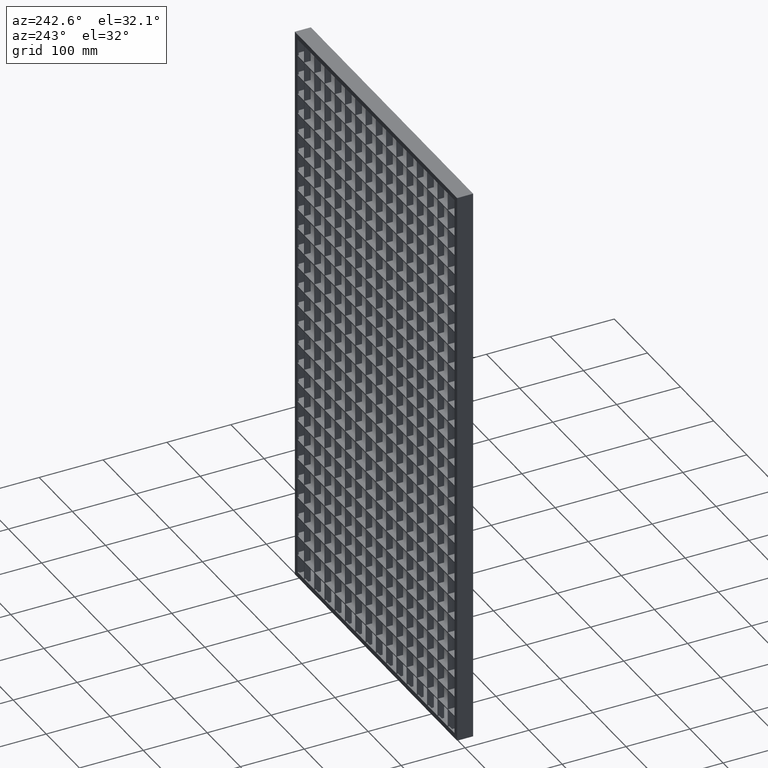
[diagram: clean part render]
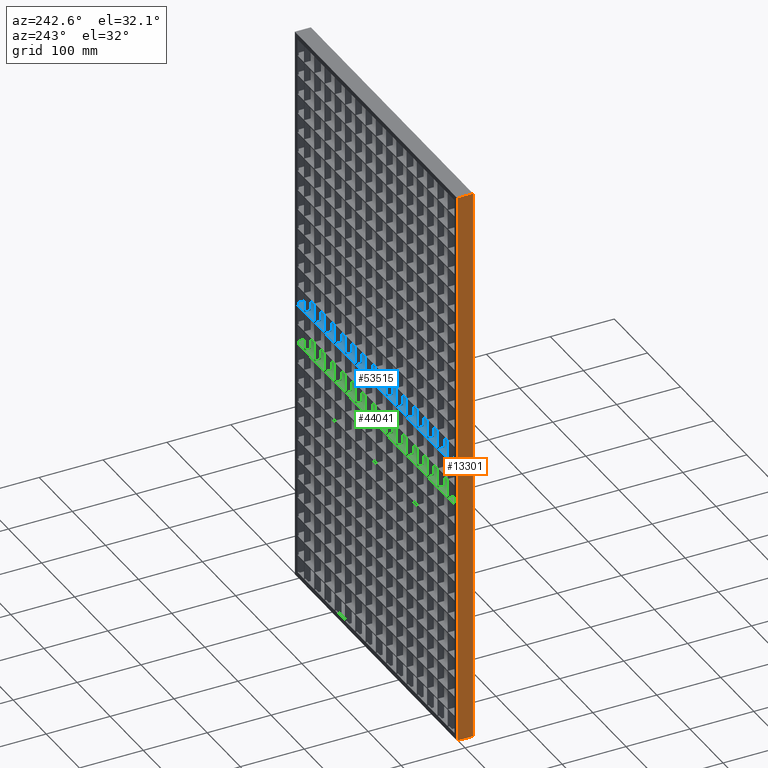
[diagram: same view with three faces highlighted in distinct colors, each labeled with its STEP entity id]
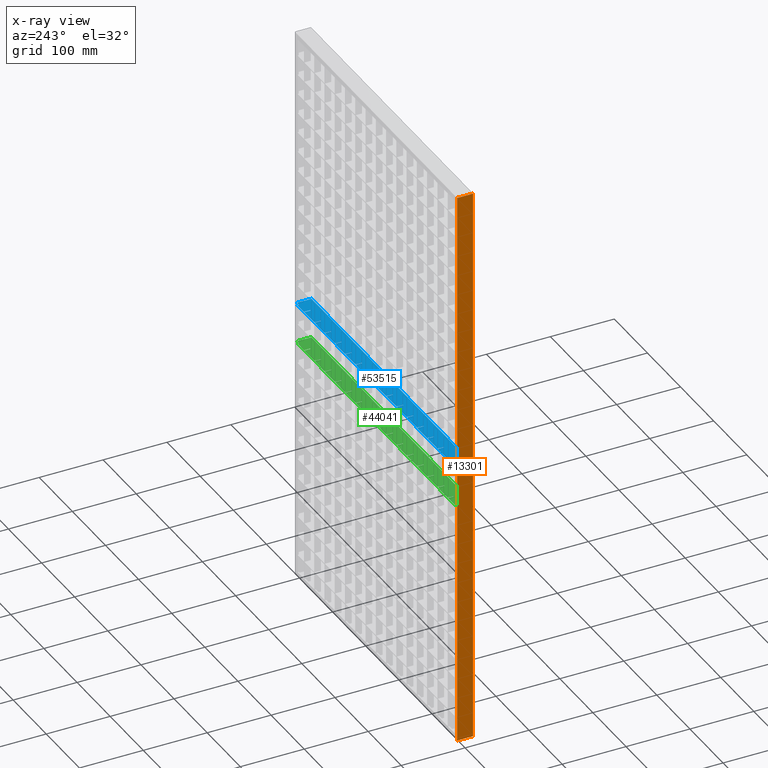
[diagram: x-ray of the same camera — body ghosted, the three highlighted faces saturated]
A machine part, auxiliary view with three faces highlighted in distinct colors.
The next image is the same camera in x-ray (body ghosted, the three faces saturated) — at least one of them is partly hidden behind the body in this view.
Their STEP definitions:

[orange] entity #13301 — the highlighted planar face has unit normal (-1, -0, 0).
#260 = EDGE_CURVE ( 'NONE', #16358, #1921, #49199, .T. ) ;
#1921 = VERTEX_POINT ( 'NONE', #17335 ) ;
#3553 = DIRECTION ( 'NONE',  ( -0.0000000000000000000, -0.0000000000000000000, 1.000000000000000000 ) ) ;
#8716 = AXIS2_PLACEMENT_3D ( 'NONE', #28273, #52180, #52804 ) ;
#10565 = ORIENTED_EDGE ( 'NONE', *, *, #21648, .T. ) ;
#10576 = VECTOR ( 'NONE', #3553, 1000.000000000000000 ) ;
#13301 = ADVANCED_FACE ( 'NONE', ( #34960 ), #23637, .T. ) ;
#16358 = VERTEX_POINT ( 'NONE', #25079 ) ;
#17335 = CARTESIAN_POINT ( 'NONE',  ( -1.698629731418550900E-028, 12.50000000000000000, -1.876249176170377200E-014 ) ) ;
#18070 = DIRECTION ( 'NONE',  ( 3.061616997868383100E-016, -1.000000000000000000, 3.061616997868383100E-016 ) ) ;
#18481 = CARTESIAN_POINT ( 'NONE',  ( -4.898587196589417800E-015, 12.50000000000001600, -890.0000000000000000 ) ) ;
#20557 = B_SPLINE_CURVE_WITH_KNOTS ( 'NONE', 3,
 ( #50372, #54812, #21373, #44853 ),
 .UNSPECIFIED., .F., .F.,
 ( 4, 4 ),
 ( 0.0000000000000000000, 1.000000000000000000 ),
 .UNSPECIFIED. ) ;
#21373 = CARTESIAN_POINT ( 'NONE',  ( -2.347239698365760600E-015, 4.166666666666667900, -1.110223024625156500E-013 ) ) ;
#21648 = EDGE_CURVE ( 'NONE', #37147, #1921, #20557, .T. ) ;
#21778 = LINE ( 'NONE', #18481, #58902 ) ;
#23637 = PLANE ( 'NONE',  #8716 ) ;
#25079 = CARTESIAN_POINT ( 'NONE',  ( -4.898587196589413000E-015, 12.50000000000000000, -890.0000000000000000 ) ) ;
#26350 = VECTOR ( 'NONE', #53619, 1000.000000000000000 ) ;
#28273 = CARTESIAN_POINT ( 'NONE',  ( -4.898587196589413000E-015, 12.50000000000000000, -942.4976189936268200 ) ) ;
#28739 = CARTESIAN_POINT ( 'NONE',  ( 2.755455298081544800E-015, -12.50000000000000000, -890.0000000000000000 ) ) ;
#31311 = EDGE_CURVE ( 'NONE', #16358, #59225, #21778, .T. ) ;
#34670 = LINE ( 'NONE', #35204, #26350 ) ;
#34960 = FACE_OUTER_BOUND ( 'NONE', #44729, .T. ) ;
#35204 = CARTESIAN_POINT ( 'NONE',  ( 2.755455298081544800E-015, -12.50000000000000000, -942.4976189936268200 ) ) ;
#37147 = VERTEX_POINT ( 'NONE', #60569 ) ;
#39974 = ORIENTED_EDGE ( 'NONE', *, *, #260, .F. ) ;
#44729 = EDGE_LOOP ( 'NONE', ( #50940, #10565, #39974, #48854 ) ) ;
#44853 = CARTESIAN_POINT ( 'NONE',  ( -1.698629731418550900E-028, 12.50000000000000000, -1.876249176170377200E-014 ) ) ;
#48854 = ORIENTED_EDGE ( 'NONE', *, *, #31311, .T. ) ;
#49199 = LINE ( 'NONE', #61460, #10576 ) ;
#50372 = CARTESIAN_POINT ( 'NONE',  ( -5.413342358221705700E-014, -12.50000000000000000, 5.551115123125782700E-014 ) ) ;
#50940 = ORIENTED_EDGE ( 'NONE', *, *, #51041, .T. ) ;
#51041 = EDGE_CURVE ( 'NONE', #59225, #37147, #34670, .T. ) ;
#52180 = DIRECTION ( 'NONE',  ( -1.000000000000000000, -3.061616997868383100E-016, 0.0000000000000000000 ) ) ;
#52804 = DIRECTION ( 'NONE',  ( 3.061616997868383100E-016, -1.000000000000000000, 0.0000000000000000000 ) ) ;
#53619 = DIRECTION ( 'NONE',  ( -0.0000000000000000000, -0.0000000000000000000, 1.000000000000000000 ) ) ;
#54812 = CARTESIAN_POINT ( 'NONE',  ( 2.041077998578923800E-016, -4.166666666666667900, -1.110223024625156500E-013 ) ) ;
#58902 = VECTOR ( 'NONE', #18070, 1000.000000000000000 ) ;
#59225 = VERTEX_POINT ( 'NONE', #28739 ) ;
#60569 = CARTESIAN_POINT ( 'NONE',  ( -5.413342358221705700E-014, -12.50000000000000000, 5.551115123125782700E-014 ) ) ;
#61460 = CARTESIAN_POINT ( 'NONE',  ( -4.898587196589413000E-015, 12.50000000000000000, -942.4976189936268200 ) ) ;

[blue] entity #53515 — the highlighted planar face has unit normal (0, 0, 1).
#21 = VECTOR ( 'NONE', #5213, 1000.000000000000000 ) ;
#268 = VERTEX_POINT ( 'NONE', #53179 ) ;
#318 = VECTOR ( 'NONE', #61554, 1000.000000000000000 ) ;
#343 = ORIENTED_EDGE ( 'NONE', *, *, #59946, .T. ) ;
#523 = ORIENTED_EDGE ( 'NONE', *, *, #20612, .T. ) ;
#537 = DIRECTION ( 'NONE',  ( 1.000000000000000000, 4.336808689942013800E-016, -0.0000000000000000000 ) ) ;
#689 = EDGE_CURVE ( 'NONE', #24769, #11632, #60532, .T. ) ;
#747 = DIRECTION ( 'NONE',  ( 0.0000000000000000000, -1.000000000000000000, 0.0000000000000000000 ) ) ;
#911 = EDGE_CURVE ( 'NONE', #59907, #31523, #18074, .T. ) ;
#969 = VERTEX_POINT ( 'NONE', #15913 ) ;
#1174 = VECTOR ( 'NONE', #747, 1000.000000000000000 ) ;
#1217 = LINE ( 'NONE', #8905, #46533 ) ;
#1316 = CARTESIAN_POINT ( 'NONE',  ( 338.5000000000000000, -12.49999999999984500, -444.2500000000003400 ) ) ;
#1569 = CARTESIAN_POINT ( 'NONE',  ( 513.0449595727363900, 2.500000000000210500, -444.2500000000003400 ) ) ;
#1579 = DIRECTION ( 'NONE',  ( 0.0000000000000000000, -1.000000000000000000, 0.0000000000000000000 ) ) ;
#1593 = CARTESIAN_POINT ( 'NONE',  ( 89.50000000000000000, 12.50000000000000000, -444.2500000000003400 ) ) ;
#1608 = LINE ( 'NONE', #61757, #9841 ) ;
#1636 = VECTOR ( 'NONE', #39932, 1000.000000000000000 ) ;
#1749 = VECTOR ( 'NONE', #40002, 1000.000000000000000 ) ;
#1757 = VECTOR ( 'NONE', #14104, 1000.000000000000000 ) ;
#1983 = VERTEX_POINT ( 'NONE', #61320 ) ;
#2021 = VERTEX_POINT ( 'NONE', #41613 ) ;
#2070 = CARTESIAN_POINT ( 'NONE',  ( 513.0449595727363900, 2.499999999999964000, -444.2500000000003400 ) ) ;
#2138 = VECTOR ( 'NONE', #36582, 1000.000000000000000 ) ;
#2668 = LINE ( 'NONE', #16286, #61660 ) ;
#3211 = ORIENTED_EDGE ( 'NONE', *, *, #30334, .T. ) ;
#3234 = LINE ( 'NONE', #5394, #6904 ) ;
#3260 = EDGE_CURVE ( 'NONE', #7033, #12019, #37277, .T. ) ;
#3276 = CARTESIAN_POINT ( 'NONE',  ( 462.5000000000000000, 2.500000000000000400, -444.2500000000003400 ) ) ;
#3295 = DIRECTION ( 'NONE',  ( -1.000000000000000000, 4.336808689942013800E-016, 0.0000000000000000000 ) ) ;
#3784 = CARTESIAN_POINT ( 'NONE',  ( 306.5000000000000000, 12.50000000000009200, -444.2500000000003400 ) ) ;
#3804 = CARTESIAN_POINT ( 'NONE',  ( 213.5000000000000000, 12.50000000000000000, -444.2500000000003400 ) ) ;
#3899 = EDGE_CURVE ( 'NONE', #46730, #22591, #59148, .T. ) ;
#3995 = ORIENTED_EDGE ( 'NONE', *, *, #59608, .F. ) ;
#4120 = CARTESIAN_POINT ( 'NONE',  ( 513.0449595727363900, 2.500000000000196300, -444.2500000000003400 ) ) ;
#4603 = LINE ( 'NONE', #16022, #36395 ) ;
#4882 = CARTESIAN_POINT ( 'NONE',  ( 431.5000000000000000, 2.500000000000000400, -444.2500000000003400 ) ) ;
#4935 = DIRECTION ( 'NONE',  ( -1.000000000000000000, -3.061616997868382600E-016, 0.0000000000000000000 ) ) ;
#5213 = DIRECTION ( 'NONE',  ( -1.000000000000000000, -3.061616997868382600E-016, 0.0000000000000000000 ) ) ;
#5394 = CARTESIAN_POINT ( 'NONE',  ( 245.0000000000000000, 10.50000000000000500, -444.2500000000003400 ) ) ;
#5886 = CARTESIAN_POINT ( 'NONE',  ( 513.0449595727363900, 2.500000000000170500, -444.2500000000003400 ) ) ;
#5964 = CARTESIAN_POINT ( 'NONE',  ( 337.5000000000000000, 2.500000000000000900, -444.2500000000003400 ) ) ;
#6057 = CARTESIAN_POINT ( 'NONE',  ( 244.5000000000000000, -12.49999999999984500, -444.2500000000003400 ) ) ;
#6079 = VECTOR ( 'NONE', #38348, 1000.000000000000000 ) ;
#6259 = VECTOR ( 'NONE', #38769, 1000.000000000000000 ) ;
#6351 = VERTEX_POINT ( 'NONE', #29927 ) ;
#6454 = VECTOR ( 'NONE', #27504, 1000.000000000000000 ) ;
#6526 = LINE ( 'NONE', #53642, #56478 ) ;
#6557 = EDGE_CURVE ( 'NONE', #27444, #39242, #40519, .T. ) ;
#6704 = VECTOR ( 'NONE', #8323, 1000.000000000000000 ) ;
#6812 = CARTESIAN_POINT ( 'NONE',  ( 90.50000000000002800, -12.49999999999984500, -444.2500000000003400 ) ) ;
#6883 = VECTOR ( 'NONE', #12372, 1000.000000000000000 ) ;
#6904 = VECTOR ( 'NONE', #34350, 1000.000000000000000 ) ;
#6933 = ORIENTED_EDGE ( 'NONE', *, *, #53909, .T. ) ;
#7033 = VERTEX_POINT ( 'NONE', #54320 ) ;
#7134 = VECTOR ( 'NONE', #1579, 1000.000000000000000 ) ;
#7336 = EDGE_CURVE ( 'NONE', #16749, #54551, #56398, .T. ) ;
#7539 = LINE ( 'NONE', #47753, #10534 ) ;
#7555 = CARTESIAN_POINT ( 'NONE',  ( 461.5000000000000000, 12.50000000000014000, -444.2500000000003400 ) ) ;
#7823 = ORIENTED_EDGE ( 'NONE', *, *, #25651, .F. ) ;
#7869 = ORIENTED_EDGE ( 'NONE', *, *, #21384, .F. ) ;
#7920 = CARTESIAN_POINT ( 'NONE',  ( 431.5000000000000000, 12.50000000000000000, -444.2500000000003400 ) ) ;
#8037 = DIRECTION ( 'NONE',  ( 0.0000000000000000000, -1.000000000000000000, 0.0000000000000000000 ) ) ;
#8190 = CARTESIAN_POINT ( 'NONE',  ( 276.4999999999999400, 12.50000000000000000, -444.2500000000003400 ) ) ;
#8323 = DIRECTION ( 'NONE',  ( -0.0000000000000000000, 1.000000000000000000, 0.0000000000000000000 ) ) ;
#8358 = LINE ( 'NONE', #60650, #6883 ) ;
#8548 = LINE ( 'NONE', #61558, #42597 ) ;
#8681 = VECTOR ( 'NONE', #28407, 1000.000000000000000 ) ;
#8905 = CARTESIAN_POINT ( 'NONE',  ( 513.0449595727363900, 2.500000000000156800, -444.2500000000003400 ) ) ;
#9189 = FACE_OUTER_BOUND ( 'NONE', #52506, .T. ) ;
#9444 = ORIENTED_EDGE ( 'NONE', *, *, #39746, .T. ) ;
#9500 = ORIENTED_EDGE ( 'NONE', *, *, #3260, .T. ) ;
#9634 = ORIENTED_EDGE ( 'NONE', *, *, #31849, .T. ) ;
#9639 = DIRECTION ( 'NONE',  ( 0.0000000000000000000, -1.000000000000000000, 0.0000000000000000000 ) ) ;
#9745 = DIRECTION ( 'NONE',  ( 0.0000000000000000000, 0.0000000000000000000, 1.000000000000000000 ) ) ;
#9800 = CARTESIAN_POINT ( 'NONE',  ( 513.0449595727363900, -12.49999999999984500, -444.2500000000003400 ) ) ;
#9841 = VECTOR ( 'NONE', #37030, 1000.000000000000000 ) ;
#9888 = VECTOR ( 'NONE', #44054, 1000.000000000000000 ) ;
#9956 = LINE ( 'NONE', #49857, #44747 ) ;
#10249 = CARTESIAN_POINT ( 'NONE',  ( 513.0449595727363900, 12.50000000000015500, -444.2500000000003400 ) ) ;
#10274 = EDGE_CURVE ( 'NONE', #28735, #2021, #28498, .T. ) ;
#10291 = DIRECTION ( 'NONE',  ( -1.000000000000000000, 4.336808689942013800E-016, 0.0000000000000000000 ) ) ;
#10350 = VERTEX_POINT ( 'NONE', #47181 ) ;
#10444 = ORIENTED_EDGE ( 'NONE', *, *, #53287, .F. ) ;
#10534 = VECTOR ( 'NONE', #33576, 1000.000000000000000 ) ;
#10588 = VERTEX_POINT ( 'NONE', #48633 ) ;
#11003 = VERTEX_POINT ( 'NONE', #61926 ) ;
#11100 = CARTESIAN_POINT ( 'NONE',  ( 513.0449595727363900, 2.500000000000142600, -444.2500000000003400 ) ) ;
#11258 = LINE ( 'NONE', #62444, #6079 ) ;
#11355 = VECTOR ( 'NONE', #12260, 1000.000000000000000 ) ;
#11487 = VECTOR ( 'NONE', #53843, 1000.000000000000000 ) ;
#11629 = CARTESIAN_POINT ( 'NONE',  ( 183.5000000000000600, 12.50000000000005500, -444.2500000000003400 ) ) ;
#11632 = VERTEX_POINT ( 'NONE', #46623 ) ;
#11843 = ORIENTED_EDGE ( 'NONE', *, *, #53468, .T. ) ;
#12019 = VERTEX_POINT ( 'NONE', #55402 ) ;
#12030 = VERTEX_POINT ( 'NONE', #41595 ) ;
#12125 = ORIENTED_EDGE ( 'NONE', *, *, #52490, .F. ) ;
#12216 = CARTESIAN_POINT ( 'NONE',  ( 306.5000000000000000, -12.49999999999984500, -444.2500000000003400 ) ) ;
#12258 = CARTESIAN_POINT ( 'NONE',  ( 120.5000000000000000, 2.500000000000000000, -444.2500000000003400 ) ) ;
#12260 = DIRECTION ( 'NONE',  ( -1.000000000000000000, -3.061616997868382600E-016, 0.0000000000000000000 ) ) ;
#12297 = VECTOR ( 'NONE', #55983, 1000.000000000000000 ) ;
#12372 = DIRECTION ( 'NONE',  ( -0.0000000000000000000, 1.000000000000000000, 0.0000000000000000000 ) ) ;
#12376 = VECTOR ( 'NONE', #54406, 1000.000000000000000 ) ;
#12384 = DIRECTION ( 'NONE',  ( 1.000000000000000000, 4.336808689942013800E-016, -0.0000000000000000000 ) ) ;
#12391 = VECTOR ( 'NONE', #21093, 1000.000000000000000 ) ;
#12448 = EDGE_CURVE ( 'NONE', #59907, #38859, #59250, .T. ) ;
#12563 = EDGE_CURVE ( 'NONE', #35215, #59944, #34278, .T. ) ;
#12722 = VECTOR ( 'NONE', #42164, 1000.000000000000000 ) ;
#13038 = EDGE_CURVE ( 'NONE', #61687, #27345, #20620, .T. ) ;
#13241 = VECTOR ( 'NONE', #18419, 1000.000000000000000 ) ;
#13264 = VECTOR ( 'NONE', #3295, 1000.000000000000000 ) ;
#13353 = CARTESIAN_POINT ( 'NONE',  ( 513.0449595727363900, 12.50000000000015500, -444.2500000000003400 ) ) ;
#13354 = DIRECTION ( 'NONE',  ( 1.000000000000000000, 4.336808689942013800E-016, -0.0000000000000000000 ) ) ;
#13461 = DIRECTION ( 'NONE',  ( -1.000000000000000000, -3.061616997868382600E-016, 0.0000000000000000000 ) ) ;
#13488 = ORIENTED_EDGE ( 'NONE', *, *, #57195, .T. ) ;
#13536 = ORIENTED_EDGE ( 'NONE', *, *, #58548, .T. ) ;
#13570 = CARTESIAN_POINT ( 'NONE',  ( 337.5000000000000000, 12.50000000000010100, -444.2500000000003400 ) ) ;
#13756 = CARTESIAN_POINT ( 'NONE',  ( 275.4999999999999400, -12.49999999999984500, -444.2500000000003400 ) ) ;
#13774 = EDGE_CURVE ( 'NONE', #56101, #20022, #31427, .T. ) ;
#13905 = ORIENTED_EDGE ( 'NONE', *, *, #62610, .F. ) ;
#13930 = CARTESIAN_POINT ( 'NONE',  ( 400.4999999999999400, 12.50000000000000000, -444.2500000000003400 ) ) ;
#13963 = LINE ( 'NONE', #33894, #1174 ) ;
#14104 = DIRECTION ( 'NONE',  ( -1.000000000000000000, 4.336808689942013800E-016, 0.0000000000000000000 ) ) ;
#14405 = CARTESIAN_POINT ( 'NONE',  ( 513.0449595727363900, -12.49999999999984500, -444.2500000000003400 ) ) ;
#14714 = CARTESIAN_POINT ( 'NONE',  ( 513.0449595727363900, 2.499999999999952000, -444.2500000000003400 ) ) ;
#14798 = ORIENTED_EDGE ( 'NONE', *, *, #50052, .T. ) ;
#14989 = CARTESIAN_POINT ( 'NONE',  ( 488.0000000000000600, -12.49999999999984500, -444.2500000000003400 ) ) ;
#15271 = LINE ( 'NONE', #28302, #18322 ) ;
#15277 = DIRECTION ( 'NONE',  ( -1.000000000000000000, -3.061616997868382600E-016, 0.0000000000000000000 ) ) ;
#15315 = ORIENTED_EDGE ( 'NONE', *, *, #12448, .F. ) ;
#15324 = VERTEX_POINT ( 'NONE', #19800 ) ;
#15443 = CARTESIAN_POINT ( 'NONE',  ( 244.5000000000000000, 12.50000000000000000, -444.2500000000003400 ) ) ;
#15473 = LINE ( 'NONE', #42772, #8681 ) ;
#15555 = DIRECTION ( 'NONE',  ( -0.0000000000000000000, 1.000000000000000000, 0.0000000000000000000 ) ) ;
#15833 = ORIENTED_EDGE ( 'NONE', *, *, #40951, .F. ) ;
#15913 = CARTESIAN_POINT ( 'NONE',  ( 151.5000000000000000, 12.50000000000000000, -444.2500000000003400 ) ) ;
#16022 = CARTESIAN_POINT ( 'NONE',  ( 307.5000000000000000, -12.49999999999984500, -444.2500000000003400 ) ) ;
#16157 = CARTESIAN_POINT ( 'NONE',  ( 58.50000000000000000, 12.50000000000000000, -444.2500000000003400 ) ) ;
#16272 = ORIENTED_EDGE ( 'NONE', *, *, #61244, .T. ) ;
#16286 = CARTESIAN_POINT ( 'NONE',  ( 513.0449595727363900, 2.499999999999977800, -444.2500000000003400 ) ) ;
#16293 = LINE ( 'NONE', #13756, #13241 ) ;
#16317 = VERTEX_POINT ( 'NONE', #48557 ) ;
#16327 = VECTOR ( 'NONE', #42130, 1000.000000000000000 ) ;
#16518 = DIRECTION ( 'NONE',  ( -0.0000000000000000000, 1.000000000000000000, 0.0000000000000000000 ) ) ;
#16749 = VERTEX_POINT ( 'NONE', #23713 ) ;
#16927 = VERTEX_POINT ( 'NONE', #30213 ) ;
#16997 = CARTESIAN_POINT ( 'NONE',  ( 338.5000000000000000, 2.500000000000000400, -444.2500000000003400 ) ) ;
#17360 = LINE ( 'NONE', #33884, #25719 ) ;
#17387 = EDGE_CURVE ( 'NONE', #56101, #38459, #39337, .T. ) ;
#17686 = CARTESIAN_POINT ( 'NONE',  ( 152.4999999999999700, -12.49999999999984500, -444.2500000000003400 ) ) ;
#17710 = CARTESIAN_POINT ( 'NONE',  ( 27.49999999999996800, 2.499999999999999600, -444.2500000000003400 ) ) ;
#17739 = LINE ( 'NONE', #25823, #12376 ) ;
#17970 = CARTESIAN_POINT ( 'NONE',  ( 27.49999999999999600, 12.50000000000000000, -444.2500000000003400 ) ) ;
#18074 = LINE ( 'NONE', #13353, #46041 ) ;
#18234 = DIRECTION ( 'NONE',  ( -1.000000000000000000, -3.061616997868382600E-016, 0.0000000000000000000 ) ) ;
#18270 = CARTESIAN_POINT ( 'NONE',  ( 90.50000000000002800, 12.50000000000002500, -444.2500000000003400 ) ) ;
#18288 = ORIENTED_EDGE ( 'NONE', *, *, #20074, .T. ) ;
#18318 = DIRECTION ( 'NONE',  ( 0.0000000000000000000, -1.000000000000000000, 0.0000000000000000000 ) ) ;
#18322 = VECTOR ( 'NONE', #57090, 1000.000000000000000 ) ;
#18398 = ORIENTED_EDGE ( 'NONE', *, *, #6557, .T. ) ;
#18419 = DIRECTION ( 'NONE',  ( -0.0000000000000000000, 1.000000000000000000, 0.0000000000000000000 ) ) ;
#18554 = VERTEX_POINT ( 'NONE', #56707 ) ;
#18697 = LINE ( 'NONE', #56068, #55805 ) ;
#19208 = VECTOR ( 'NONE', #18318, 1000.000000000000000 ) ;
#19284 = VECTOR ( 'NONE', #40692, 1000.000000000000000 ) ;
#19450 = EDGE_CURVE ( 'NONE', #58130, #28735, #4603, .T. ) ;
#19621 = DIRECTION ( 'NONE',  ( -1.000000000000000000, -3.061616997868382600E-016, 0.0000000000000000000 ) ) ;
#19768 = ORIENTED_EDGE ( 'NONE', *, *, #19450, .T. ) ;
#19800 = CARTESIAN_POINT ( 'NONE',  ( 28.49999999999997200, 2.500000000000000400, -444.2500000000003400 ) ) ;
#20022 = VERTEX_POINT ( 'NONE', #12258 ) ;
#20074 = EDGE_CURVE ( 'NONE', #11003, #16927, #18697, .T. ) ;
#20099 = DIRECTION ( 'NONE',  ( -1.000000000000000000, 4.336808689942013800E-016, 0.0000000000000000000 ) ) ;
#20328 = DIRECTION ( 'NONE',  ( 1.000000000000000000, 4.336808689942013800E-016, -0.0000000000000000000 ) ) ;
#20575 = CARTESIAN_POINT ( 'NONE',  ( 151.4999999999999700, 2.499999999999999600, -444.2500000000003400 ) ) ;
#20612 = EDGE_CURVE ( 'NONE', #55949, #43775, #57980, .T. ) ;
#20620 = LINE ( 'NONE', #20972, #1749 ) ;
#20818 = LINE ( 'NONE', #51827, #6454 ) ;
#20889 = ORIENTED_EDGE ( 'NONE', *, *, #911, .T. ) ;
#20946 = CARTESIAN_POINT ( 'NONE',  ( 245.5000000000000000, 12.50000000000007300, -444.2500000000003400 ) ) ;
#20972 = CARTESIAN_POINT ( 'NONE',  ( 121.5000000000000000, -12.49999999999984500, -444.2500000000003400 ) ) ;
#21069 = EDGE_CURVE ( 'NONE', #42682, #6351, #30643, .T. ) ;
#21070 = DIRECTION ( 'NONE',  ( 1.000000000000000000, 4.336808689942013800E-016, -0.0000000000000000000 ) ) ;
#21093 = DIRECTION ( 'NONE',  ( 0.0000000000000000000, -1.000000000000000000, 0.0000000000000000000 ) ) ;
#21259 = LINE ( 'NONE', #55577, #61396 ) ;
#21384 = EDGE_CURVE ( 'NONE', #39809, #37610, #49515, .T. ) ;
#22035 = VECTOR ( 'NONE', #537, 1000.000000000000000 ) ;
#22230 = LINE ( 'NONE', #22847, #318 ) ;
#22358 = CARTESIAN_POINT ( 'NONE',  ( 183.5000000000000000, -12.49999999999984500, -444.2500000000003400 ) ) ;
#22412 = LINE ( 'NONE', #56402, #59513 ) ;
#22479 = CARTESIAN_POINT ( 'NONE',  ( 513.0449595727363900, 2.499999999999898300, -444.2500000000003400 ) ) ;
#22545 = CARTESIAN_POINT ( 'NONE',  ( 461.5000000000000000, -12.49999999999984500, -444.2500000000003400 ) ) ;
#22591 = VERTEX_POINT ( 'NONE', #49724 ) ;
#22738 = EDGE_CURVE ( 'NONE', #35477, #38459, #36517, .T. ) ;
#22759 = DIRECTION ( 'NONE',  ( -0.0000000000000000000, 1.000000000000000000, 0.0000000000000000000 ) ) ;
#22809 = ORIENTED_EDGE ( 'NONE', *, *, #30858, .T. ) ;
#22847 = CARTESIAN_POINT ( 'NONE',  ( 337.5000000000000000, -12.49999999999984500, -444.2500000000003400 ) ) ;
#23452 = ORIENTED_EDGE ( 'NONE', *, *, #46583, .T. ) ;
#23713 = CARTESIAN_POINT ( 'NONE',  ( 152.4999999999999700, 2.500000000000000400, -444.2500000000003400 ) ) ;
#23831 = VERTEX_POINT ( 'NONE', #29694 ) ;
#23896 = EDGE_CURVE ( 'NONE', #33491, #28694, #25675, .T. ) ;
#23980 = VECTOR ( 'NONE', #51320, 1000.000000000000000 ) ;
#23986 = CARTESIAN_POINT ( 'NONE',  ( 151.4999999999999700, -12.49999999999984500, -444.2500000000003400 ) ) ;
#24093 = VECTOR ( 'NONE', #29968, 1000.000000000000000 ) ;
#24119 = VERTEX_POINT ( 'NONE', #3276 ) ;
#24307 = VECTOR ( 'NONE', #42409, 1000.000000000000000 ) ;
#24420 = ORIENTED_EDGE ( 'NONE', *, *, #10274, .T. ) ;
#24769 = VERTEX_POINT ( 'NONE', #17970 ) ;
#24872 = CARTESIAN_POINT ( 'NONE',  ( 59.50000000000000000, -12.49999999999984500, -444.2500000000003400 ) ) ;
#25190 = VERTEX_POINT ( 'NONE', #60202 ) ;
#25264 = LINE ( 'NONE', #36355, #12391 ) ;
#25468 = VECTOR ( 'NONE', #27118, 1000.000000000000000 ) ;
#25529 = LINE ( 'NONE', #34206, #24093 ) ;
#25601 = LINE ( 'NONE', #37322, #12722 ) ;
#25651 = EDGE_CURVE ( 'NONE', #969, #35855, #42583, .T. ) ;
#25675 = LINE ( 'NONE', #54025, #21 ) ;
#25719 = VECTOR ( 'NONE', #53341, 1000.000000000000000 ) ;
#25722 = VERTEX_POINT ( 'NONE', #43389 ) ;
#25776 = ORIENTED_EDGE ( 'NONE', *, *, #3899, .F. ) ;
#25823 = CARTESIAN_POINT ( 'NONE',  ( 2.000000000000002700, 10.50000000000000500, -444.2500000000003400 ) ) ;
#26046 = ORIENTED_EDGE ( 'NONE', *, *, #53779, .F. ) ;
#26504 = EDGE_CURVE ( 'NONE', #12030, #29684, #46237, .T. ) ;
#26750 = CARTESIAN_POINT ( 'NONE',  ( 368.5000000000000600, -12.49999999999984500, -444.2500000000003400 ) ) ;
#26769 = ORIENTED_EDGE ( 'NONE', *, *, #56717, .F. ) ;
#26786 = ORIENTED_EDGE ( 'NONE', *, *, #7336, .F. ) ;
#26965 = CARTESIAN_POINT ( 'NONE',  ( 182.5000000000000000, 12.50000000000000000, -444.2500000000003400 ) ) ;
#27083 = ORIENTED_EDGE ( 'NONE', *, *, #29996, .F. ) ;
#27118 = DIRECTION ( 'NONE',  ( -1.000000000000000000, 4.336808689942013800E-016, 0.0000000000000000000 ) ) ;
#27184 = LINE ( 'NONE', #54800, #57555 ) ;
#27237 = VECTOR ( 'NONE', #15277, 1000.000000000000000 ) ;
#27345 = VERTEX_POINT ( 'NONE', #47582 ) ;
#27442 = DIRECTION ( 'NONE',  ( -1.000000000000000000, 4.336808689942013800E-016, 0.0000000000000000000 ) ) ;
#27444 = VERTEX_POINT ( 'NONE', #4882 ) ;
#27504 = DIRECTION ( 'NONE',  ( -1.000000000000000000, -3.061616997868382600E-016, 0.0000000000000000000 ) ) ;
#27801 = LINE ( 'NONE', #12216, #2138 ) ;
#27818 = VERTEX_POINT ( 'NONE', #27870 ) ;
#27870 = CARTESIAN_POINT ( 'NONE',  ( 276.4999999999999400, 2.500000000000000400, -444.2500000000003400 ) ) ;
#28302 = CARTESIAN_POINT ( 'NONE',  ( 513.0449595727363900, 12.50000000000015500, -444.2500000000003400 ) ) ;
#28368 = DIRECTION ( 'NONE',  ( -0.0000000000000000000, 1.000000000000000000, 0.0000000000000000000 ) ) ;
#28407 = DIRECTION ( 'NONE',  ( -8.673617379884036500E-016, -1.000000000000000000, 0.0000000000000000000 ) ) ;
#28441 = ORIENTED_EDGE ( 'NONE', *, *, #51627, .F. ) ;
#28498 = LINE ( 'NONE', #45936, #25468 ) ;
#28694 = VERTEX_POINT ( 'NONE', #57105 ) ;
#28735 = VERTEX_POINT ( 'NONE', #57518 ) ;
#29071 = LINE ( 'NONE', #54609, #7134 ) ;
#29149 = EDGE_CURVE ( 'NONE', #41240, #11003, #30021, .T. ) ;
#29445 = ORIENTED_EDGE ( 'NONE', *, *, #41084, .T. ) ;
#29684 = VERTEX_POINT ( 'NONE', #16997 ) ;
#29694 = CARTESIAN_POINT ( 'NONE',  ( 89.49999999999997200, 2.500000000000000400, -444.2500000000003400 ) ) ;
#29816 = EDGE_CURVE ( 'NONE', #27818, #16317, #38311, .T. ) ;
#29927 = CARTESIAN_POINT ( 'NONE',  ( 183.5000000000000000, 2.500000000000000400, -444.2500000000003400 ) ) ;
#29968 = DIRECTION ( 'NONE',  ( -1.000000000000000000, -3.061616997868382600E-016, 0.0000000000000000000 ) ) ;
#29996 = EDGE_CURVE ( 'NONE', #35855, #16749, #1217, .T. ) ;
#30021 = LINE ( 'NONE', #41361, #23980 ) ;
#30085 = ORIENTED_EDGE ( 'NONE', *, *, #26504, .T. ) ;
#30213 = CARTESIAN_POINT ( 'NONE',  ( 369.5000000000000600, 2.500000000000000400, -444.2500000000003400 ) ) ;
#30334 = EDGE_CURVE ( 'NONE', #24119, #10350, #2668, .T. ) ;
#30412 = VERTEX_POINT ( 'NONE', #46295 ) ;
#30643 = LINE ( 'NONE', #11100, #35943 ) ;
#30694 = LINE ( 'NONE', #5886, #46592 ) ;
#30858 = EDGE_CURVE ( 'NONE', #10588, #12030, #25529, .T. ) ;
#31029 = CARTESIAN_POINT ( 'NONE',  ( 2.000000000000002700, -12.50000000000000000, -444.2500000000003400 ) ) ;
#31079 = VERTEX_POINT ( 'NONE', #26965 ) ;
#31089 = EDGE_CURVE ( 'NONE', #37240, #10588, #39975, .T. ) ;
#31091 = EDGE_CURVE ( 'NONE', #33491, #23831, #25601, .T. ) ;
#31096 = DIRECTION ( 'NONE',  ( -1.000000000000000000, -3.061616997868382600E-016, 0.0000000000000000000 ) ) ;
#31427 = LINE ( 'NONE', #46192, #19284 ) ;
#31523 = VERTEX_POINT ( 'NONE', #44862 ) ;
#31849 = EDGE_CURVE ( 'NONE', #39242, #1983, #34572, .T. ) ;
#31870 = DIRECTION ( 'NONE',  ( 0.0000000000000000000, -1.000000000000000000, 0.0000000000000000000 ) ) ;
#31999 = CARTESIAN_POINT ( 'NONE',  ( 2.000000000000001800, -12.50000000000000200, -444.2500000000003400 ) ) ;
#32121 = LINE ( 'NONE', #39086, #36704 ) ;
#32584 = ORIENTED_EDGE ( 'NONE', *, *, #59736, .T. ) ;
#32616 = VECTOR ( 'NONE', #20328, 1000.000000000000000 ) ;
#32654 = VECTOR ( 'NONE', #16518, 1000.000000000000000 ) ;
#32662 = ORIENTED_EDGE ( 'NONE', *, *, #59788, .F. ) ;
#32894 = CARTESIAN_POINT ( 'NONE',  ( 213.4999999999999700, 2.500000000000000400, -444.2500000000003400 ) ) ;
#33469 = LINE ( 'NONE', #41497, #56186 ) ;
#33491 = VERTEX_POINT ( 'NONE', #1593 ) ;
#33576 = DIRECTION ( 'NONE',  ( -0.0000000000000000000, 1.000000000000000000, 0.0000000000000000000 ) ) ;
#33668 = PLANE ( 'NONE',  #58898 ) ;
#33727 = ORIENTED_EDGE ( 'NONE', *, *, #17387, .T. ) ;
#33733 = ORIENTED_EDGE ( 'NONE', *, *, #13038, .F. ) ;
#33772 = DIRECTION ( 'NONE',  ( -1.000000000000000000, -3.061616997868382600E-016, 0.0000000000000000000 ) ) ;
#33874 = VECTOR ( 'NONE', #10291, 1000.000000000000000 ) ;
#33884 = CARTESIAN_POINT ( 'NONE',  ( 400.4999999999999400, -12.49999999999984500, -444.2500000000003400 ) ) ;
#33894 = CARTESIAN_POINT ( 'NONE',  ( 58.50000000000000000, -12.49999999999984500, -444.2500000000003400 ) ) ;
#34010 = CARTESIAN_POINT ( 'NONE',  ( 513.0449595727363900, 2.499999999999937800, -444.2500000000003400 ) ) ;
#34014 = EDGE_CURVE ( 'NONE', #37610, #28694, #34338, .T. ) ;
#34037 = DIRECTION ( 'NONE',  ( 0.0000000000000000000, -1.000000000000000000, 0.0000000000000000000 ) ) ;
#34092 = CARTESIAN_POINT ( 'NONE',  ( 513.0449595727363900, 2.500000000000130600, -444.2500000000003400 ) ) ;
#34206 = CARTESIAN_POINT ( 'NONE',  ( 513.0449595727363900, 12.50000000000015500, -444.2500000000003400 ) ) ;
#34278 = LINE ( 'NONE', #40071, #12297 ) ;
#34338 = LINE ( 'NONE', #24872, #50245 ) ;
#34350 = DIRECTION ( 'NONE',  ( -1.000000000000000000, 0.0000000000000000000, 0.0000000000000000000 ) ) ;
#34543 = CARTESIAN_POINT ( 'NONE',  ( 58.49999999999994300, 2.499999999999999100, -444.2500000000003400 ) ) ;
#34572 = LINE ( 'NONE', #47403, #52718 ) ;
#34892 = EDGE_CURVE ( 'NONE', #30412, #18554, #15271, .T. ) ;
#35215 = VERTEX_POINT ( 'NONE', #48998 ) ;
#35477 = VERTEX_POINT ( 'NONE', #41342 ) ;
#35501 = EDGE_CURVE ( 'NONE', #12019, #41240, #8358, .T. ) ;
#35601 = LINE ( 'NONE', #60538, #11355 ) ;
#35855 = VERTEX_POINT ( 'NONE', #20575 ) ;
#35943 = VECTOR ( 'NONE', #44930, 1000.000000000000000 ) ;
#36129 = EDGE_CURVE ( 'NONE', #22591, #31523, #7539, .T. ) ;
#36292 = ORIENTED_EDGE ( 'NONE', *, *, #41088, .T. ) ;
#36355 = CARTESIAN_POINT ( 'NONE',  ( 213.5000000000000300, -12.49999999999984500, -444.2500000000003400 ) ) ;
#36395 = VECTOR ( 'NONE', #50293, 1000.000000000000000 ) ;
#36517 = LINE ( 'NONE', #6812, #32654 ) ;
#36521 = VECTOR ( 'NONE', #57387, 1000.000000000000000 ) ;
#36582 = DIRECTION ( 'NONE',  ( -0.0000000000000000000, 1.000000000000000000, 0.0000000000000000000 ) ) ;
#36662 = VECTOR ( 'NONE', #33772, 1000.000000000000000 ) ;
#36682 = DIRECTION ( 'NONE',  ( -1.000000000000000000, -3.061616997868382600E-016, 0.0000000000000000000 ) ) ;
#36704 = VECTOR ( 'NONE', #19621, 1000.000000000000000 ) ;
#37030 = DIRECTION ( 'NONE',  ( -1.000000000000000000, -3.061616997868382600E-016, 0.0000000000000000000 ) ) ;
#37239 = EDGE_CURVE ( 'NONE', #16317, #41337, #16293, .T. ) ;
#37240 = VERTEX_POINT ( 'NONE', #47393 ) ;
#37277 = LINE ( 'NONE', #14714, #1757 ) ;
#37283 = CARTESIAN_POINT ( 'NONE',  ( 513.0449595727363900, 12.50000000000015500, -444.2500000000003400 ) ) ;
#37322 = CARTESIAN_POINT ( 'NONE',  ( 89.50000000000002800, -12.49999999999984500, -444.2500000000003400 ) ) ;
#37370 = LINE ( 'NONE', #52791, #19208 ) ;
#37610 = VERTEX_POINT ( 'NONE', #55190 ) ;
#37777 = VERTEX_POINT ( 'NONE', #8190 ) ;
#37933 = DIRECTION ( 'NONE',  ( 1.000000000000000000, 0.0000000000000000000, -0.0000000000000000000 ) ) ;
#37970 = EDGE_CURVE ( 'NONE', #41337, #59944, #49486, .T. ) ;
#38095 = ORIENTED_EDGE ( 'NONE', *, *, #40309, .T. ) ;
#38311 = LINE ( 'NONE', #22479, #16327 ) ;
#38348 = DIRECTION ( 'NONE',  ( -0.0000000000000000000, 1.000000000000000000, 0.0000000000000000000 ) ) ;
#38459 = VERTEX_POINT ( 'NONE', #18270 ) ;
#38769 = DIRECTION ( 'NONE',  ( 0.0000000000000000000, -1.000000000000000000, 0.0000000000000000000 ) ) ;
#38859 = VERTEX_POINT ( 'NONE', #46489 ) ;
#38884 = VERTEX_POINT ( 'NONE', #3804 ) ;
#38904 = CARTESIAN_POINT ( 'NONE',  ( 482.0000000000001100, 10.50000000000000500, -444.2500000000003400 ) ) ;
#38910 = VECTOR ( 'NONE', #62661, 1000.000000000000000 ) ;
#39086 = CARTESIAN_POINT ( 'NONE',  ( 513.0449595727363900, 12.50000000000015500, -444.2500000000003400 ) ) ;
#39242 = VERTEX_POINT ( 'NONE', #50040 ) ;
#39337 = LINE ( 'NONE', #47525, #48366 ) ;
#39746 = EDGE_CURVE ( 'NONE', #54502, #58130, #54489, .T. ) ;
#39809 = VERTEX_POINT ( 'NONE', #34543 ) ;
#39814 = ORIENTED_EDGE ( 'NONE', *, *, #13774, .F. ) ;
#39932 = DIRECTION ( 'NONE',  ( 0.0000000000000000000, -1.000000000000000000, 0.0000000000000000000 ) ) ;
#39975 = LINE ( 'NONE', #26750, #6704 ) ;
#40002 = DIRECTION ( 'NONE',  ( -0.0000000000000000000, 1.000000000000000000, 0.0000000000000000000 ) ) ;
#40071 = CARTESIAN_POINT ( 'NONE',  ( 245.5000000000000000, -12.49999999999984500, -444.2500000000003400 ) ) ;
#40221 = VERTEX_POINT ( 'NONE', #3784 ) ;
#40297 = ORIENTED_EDGE ( 'NONE', *, *, #31091, .F. ) ;
#40309 = EDGE_CURVE ( 'NONE', #61921, #27444, #6526, .T. ) ;
#40519 = LINE ( 'NONE', #2070, #13264 ) ;
#40692 = DIRECTION ( 'NONE',  ( 0.0000000000000000000, -1.000000000000000000, 0.0000000000000000000 ) ) ;
#40817 = EDGE_CURVE ( 'NONE', #11632, #25722, #15473, .T. ) ;
#40951 = EDGE_CURVE ( 'NONE', #45405, #39809, #13963, .T. ) ;
#41084 = EDGE_CURVE ( 'NONE', #25722, #55949, #17739, .T. ) ;
#41088 = EDGE_CURVE ( 'NONE', #18554, #24119, #29071, .T. ) ;
#41157 = DIRECTION ( 'NONE',  ( -0.0000000000000000000, -1.000000000000000000, 0.0000000000000000000 ) ) ;
#41240 = VERTEX_POINT ( 'NONE', #45690 ) ;
#41337 = VERTEX_POINT ( 'NONE', #51618 ) ;
#41342 = CARTESIAN_POINT ( 'NONE',  ( 90.50000000000002800, 2.500000000000000400, -444.2500000000003400 ) ) ;
#41361 = CARTESIAN_POINT ( 'NONE',  ( 513.0449595727363900, 12.50000000000015500, -444.2500000000003400 ) ) ;
#41396 = EDGE_CURVE ( 'NONE', #58638, #54502, #22230, .T. ) ;
#41412 = ORIENTED_EDGE ( 'NONE', *, *, #689, .T. ) ;
#41497 = CARTESIAN_POINT ( 'NONE',  ( 513.0449595727363900, 2.500000000000116800, -444.2500000000003400 ) ) ;
#41517 = ORIENTED_EDGE ( 'NONE', *, *, #34892, .T. ) ;
#41553 = ORIENTED_EDGE ( 'NONE', *, *, #37970, .T. ) ;
#41595 = CARTESIAN_POINT ( 'NONE',  ( 338.5000000000000000, 12.50000000000000000, -444.2500000000003400 ) ) ;
#41613 = CARTESIAN_POINT ( 'NONE',  ( 306.5000000000000000, 2.500000000000000900, -444.2500000000003400 ) ) ;
#41871 = DIRECTION ( 'NONE',  ( 0.0000000000000000000, -1.000000000000000000, 0.0000000000000000000 ) ) ;
#41932 = ORIENTED_EDGE ( 'NONE', *, *, #49766, .F. ) ;
#42130 = DIRECTION ( 'NONE',  ( -1.000000000000000000, 4.336808689942013800E-016, 0.0000000000000000000 ) ) ;
#42164 = DIRECTION ( 'NONE',  ( 0.0000000000000000000, -1.000000000000000000, 0.0000000000000000000 ) ) ;
#42409 = DIRECTION ( 'NONE',  ( -0.0000000000000000000, 1.000000000000000000, 0.0000000000000000000 ) ) ;
#42556 = VECTOR ( 'NONE', #4935, 1000.000000000000000 ) ;
#42583 = LINE ( 'NONE', #23986, #6259 ) ;
#42597 = VECTOR ( 'NONE', #41871, 1000.000000000000000 ) ;
#42682 = VERTEX_POINT ( 'NONE', #62587 ) ;
#42772 = CARTESIAN_POINT ( 'NONE',  ( 7.999999999999992900, 10.50000000000000500, -444.2500000000003400 ) ) ;
#43389 = CARTESIAN_POINT ( 'NONE',  ( 7.999999999999992900, 10.50000000000000500, -444.2500000000003400 ) ) ;
#43426 = LINE ( 'NONE', #47297, #57860 ) ;
#43462 = ORIENTED_EDGE ( 'NONE', *, *, #23896, .T. ) ;
#43597 = CARTESIAN_POINT ( 'NONE',  ( 120.5000000000000000, 12.50000000000000000, -444.2500000000003400 ) ) ;
#43775 = VERTEX_POINT ( 'NONE', #31999 ) ;
#44054 = DIRECTION ( 'NONE',  ( -1.000000000000000000, -3.061616997868382600E-016, 0.0000000000000000000 ) ) ;
#44069 = LINE ( 'NONE', #47642, #42556 ) ;
#44076 = ORIENTED_EDGE ( 'NONE', *, *, #22738, .F. ) ;
#44264 = ORIENTED_EDGE ( 'NONE', *, *, #35501, .T. ) ;
#44485 = ORIENTED_EDGE ( 'NONE', *, *, #53703, .F. ) ;
#44747 = VECTOR ( 'NONE', #31870, 1000.000000000000000 ) ;
#44862 = CARTESIAN_POINT ( 'NONE',  ( 214.5000000000000300, 12.50000000000006400, -444.2500000000003400 ) ) ;
#44930 = DIRECTION ( 'NONE',  ( 1.000000000000000000, 4.336808689942013800E-016, -0.0000000000000000000 ) ) ;
#45016 = VECTOR ( 'NONE', #56001, 1000.000000000000000 ) ;
#45123 = LINE ( 'NONE', #14989, #58033 ) ;
#45405 = VERTEX_POINT ( 'NONE', #16157 ) ;
#45462 = LINE ( 'NONE', #1569, #32616 ) ;
#45690 = CARTESIAN_POINT ( 'NONE',  ( 399.4999999999999400, 12.50000000000012100, -444.2500000000003400 ) ) ;
#45889 = ORIENTED_EDGE ( 'NONE', *, *, #47301, .T. ) ;
#45936 = CARTESIAN_POINT ( 'NONE',  ( 513.0449595727363900, 2.499999999999910300, -444.2500000000003400 ) ) ;
#46041 = VECTOR ( 'NONE', #18234, 1000.000000000000000 ) ;
#46136 = EDGE_CURVE ( 'NONE', #16927, #37240, #46733, .T. ) ;
#46192 = CARTESIAN_POINT ( 'NONE',  ( 120.5000000000000000, -12.49999999999984500, -444.2500000000003400 ) ) ;
#46237 = LINE ( 'NONE', #1316, #1636 ) ;
#46264 = ORIENTED_EDGE ( 'NONE', *, *, #49097, .F. ) ;
#46295 = CARTESIAN_POINT ( 'NONE',  ( 482.0000000000000000, 12.50000000000014600, -444.2500000000003400 ) ) ;
#46455 = VERTEX_POINT ( 'NONE', #7555 ) ;
#46489 = CARTESIAN_POINT ( 'NONE',  ( 244.5000000000000000, 2.500000000000000000, -444.2500000000003400 ) ) ;
#46516 = ORIENTED_EDGE ( 'NONE', *, *, #49076, .T. ) ;
#46533 = VECTOR ( 'NONE', #13354, 1000.000000000000000 ) ;
#46583 = EDGE_CURVE ( 'NONE', #56792, #30412, #22412, .T. ) ;
#46592 = VECTOR ( 'NONE', #21070, 1000.000000000000000 ) ;
#46623 = CARTESIAN_POINT ( 'NONE',  ( 7.999999999999994700, 12.50000000000000500, -444.2500000000003400 ) ) ;
#46730 = VERTEX_POINT ( 'NONE', #32894 ) ;
#46733 = LINE ( 'NONE', #34010, #33874 ) ;
#46851 = DIRECTION ( 'NONE',  ( -8.673617379884034500E-016, 1.000000000000000000, 0.0000000000000000000 ) ) ;
#46886 = VECTOR ( 'NONE', #22759, 1000.000000000000000 ) ;
#47181 = CARTESIAN_POINT ( 'NONE',  ( 461.5000000000000000, 2.500000000000000900, -444.2500000000003400 ) ) ;
#47297 = CARTESIAN_POINT ( 'NONE',  ( 513.0449595727363900, 2.499999999999924100, -444.2500000000003400 ) ) ;
#47301 = EDGE_CURVE ( 'NONE', #38884, #54839, #32121, .T. ) ;
#47393 = CARTESIAN_POINT ( 'NONE',  ( 368.5000000000000600, 2.500000000000000900, -444.2500000000003400 ) ) ;
#47403 = CARTESIAN_POINT ( 'NONE',  ( 430.5000000000000000, -12.49999999999984500, -444.2500000000003400 ) ) ;
#47525 = CARTESIAN_POINT ( 'NONE',  ( 513.0449595727363900, 12.50000000000015500, -444.2500000000003400 ) ) ;
#47582 = CARTESIAN_POINT ( 'NONE',  ( 121.5000000000000000, 12.50000000000003600, -444.2500000000003400 ) ) ;
#47616 = ORIENTED_EDGE ( 'NONE', *, *, #36129, .F. ) ;
#47642 = CARTESIAN_POINT ( 'NONE',  ( 513.0449595727363900, 12.50000000000015500, -444.2500000000003400 ) ) ;
#47702 = ORIENTED_EDGE ( 'NONE', *, *, #46136, .T. ) ;
#47753 = CARTESIAN_POINT ( 'NONE',  ( 214.5000000000000300, -12.49999999999984500, -444.2500000000003400 ) ) ;
#48366 = VECTOR ( 'NONE', #13461, 1000.000000000000000 ) ;
#48557 = CARTESIAN_POINT ( 'NONE',  ( 275.4999999999999400, 2.500000000000000900, -444.2500000000003400 ) ) ;
#48633 = CARTESIAN_POINT ( 'NONE',  ( 368.5000000000000600, 12.50000000000011000, -444.2500000000003400 ) ) ;
#48998 = CARTESIAN_POINT ( 'NONE',  ( 245.5000000000000000, 2.500000000000000400, -444.2500000000003400 ) ) ;
#49076 = EDGE_CURVE ( 'NONE', #25190, #56792, #3234, .T. ) ;
#49097 = EDGE_CURVE ( 'NONE', #57840, #43775, #58360, .T. ) ;
#49334 = CARTESIAN_POINT ( 'NONE',  ( 513.0449595727363900, 12.50000000000015500, -444.2500000000003400 ) ) ;
#49345 = LINE ( 'NONE', #62242, #36521 ) ;
#49353 = ORIENTED_EDGE ( 'NONE', *, *, #40817, .T. ) ;
#49486 = LINE ( 'NONE', #10249, #36662 ) ;
#49515 = LINE ( 'NONE', #4120, #38910 ) ;
#49724 = CARTESIAN_POINT ( 'NONE',  ( 214.5000000000000300, 2.500000000000000400, -444.2500000000003400 ) ) ;
#49766 = EDGE_CURVE ( 'NONE', #57088, #15324, #45462, .T. ) ;
#49857 = CARTESIAN_POINT ( 'NONE',  ( 182.5000000000000000, -12.49999999999984500, -444.2500000000003400 ) ) ;
#49993 = EDGE_CURVE ( 'NONE', #46455, #61921, #35601, .T. ) ;
#50040 = CARTESIAN_POINT ( 'NONE',  ( 430.5000000000000000, 2.500000000000000900, -444.2500000000003400 ) ) ;
#50052 = EDGE_CURVE ( 'NONE', #31079, #54551, #1608, .T. ) ;
#50182 = ORIENTED_EDGE ( 'NONE', *, *, #34014, .F. ) ;
#50245 = VECTOR ( 'NONE', #15555, 1000.000000000000000 ) ;
#50293 = DIRECTION ( 'NONE',  ( 0.0000000000000000000, -1.000000000000000000, 0.0000000000000000000 ) ) ;
#50308 = ORIENTED_EDGE ( 'NONE', *, *, #29816, .T. ) ;
#51320 = DIRECTION ( 'NONE',  ( -1.000000000000000000, -3.061616997868382600E-016, 0.0000000000000000000 ) ) ;
#51618 = CARTESIAN_POINT ( 'NONE',  ( 275.4999999999999400, 12.50000000000008200, -444.2500000000003400 ) ) ;
#51627 = EDGE_CURVE ( 'NONE', #20022, #61687, #30694, .T. ) ;
#51671 = DIRECTION ( 'NONE',  ( 1.000000000000000000, 4.336808689942013800E-016, -0.0000000000000000000 ) ) ;
#51827 = CARTESIAN_POINT ( 'NONE',  ( 513.0449595727363900, 12.50000000000015500, -444.2500000000003400 ) ) ;
#52111 = CARTESIAN_POINT ( 'NONE',  ( 2.000000000000002700, 10.50000000000000500, -444.2500000000003400 ) ) ;
#52490 = EDGE_CURVE ( 'NONE', #38884, #46730, #25264, .T. ) ;
#52506 = EDGE_LOOP ( 'NONE', ( #41517, #36292, #3211, #6933, #56991, #38095, #18398, #9634, #343, #32584, #9500, #44264, #54216, #18288, #47702, #55867, #22809, #30085, #13488, #57468, #9444, #19768, #24420, #16272, #11843, #60859, #50308, #55653, #41553, #60514, #10444, #15315, #20889, #47616, #25776, #12125, #45889, #3995, #60014, #44485, #14798, #26786, #27083, #7823, #55390, #33733, #28441, #39814, #33727, #44076, #26046, #40297, #43462, #50182, #7869, #15833, #13536, #32662, #41932, #13905, #41412, #49353, #29445, #523, #46264, #26769, #46516, #23452 ) ) ;
#52718 = VECTOR ( 'NONE', #28368, 1000.000000000000000 ) ;
#52791 = CARTESIAN_POINT ( 'NONE',  ( 276.4999999999999400, -12.49999999999984500, -444.2500000000003400 ) ) ;
#52808 = EDGE_CURVE ( 'NONE', #37777, #27818, #37370, .T. ) ;
#52910 = VECTOR ( 'NONE', #36682, 1000.000000000000000 ) ;
#53063 = CARTESIAN_POINT ( 'NONE',  ( 488.0000000000000600, -12.50000000000000000, -444.2500000000003400 ) ) ;
#53179 = CARTESIAN_POINT ( 'NONE',  ( 28.50000000000002500, 12.50000000000000500, -444.2500000000003400 ) ) ;
#53287 = EDGE_CURVE ( 'NONE', #38859, #35215, #33469, .T. ) ;
#53341 = DIRECTION ( 'NONE',  ( 0.0000000000000000000, -1.000000000000000000, 0.0000000000000000000 ) ) ;
#53468 = EDGE_CURVE ( 'NONE', #40221, #37777, #44069, .T. ) ;
#53515 = ADVANCED_FACE ( 'NONE', ( #9189 ), #33668, .T. ) ;
#53642 = CARTESIAN_POINT ( 'NONE',  ( 431.5000000000000000, -12.49999999999984500, -444.2500000000003400 ) ) ;
#53703 = EDGE_CURVE ( 'NONE', #31079, #42682, #9956, .T. ) ;
#53779 = EDGE_CURVE ( 'NONE', #23831, #35477, #21259, .T. ) ;
#53843 = DIRECTION ( 'NONE',  ( 0.0000000000000000000, -1.000000000000000000, 0.0000000000000000000 ) ) ;
#53909 = EDGE_CURVE ( 'NONE', #10350, #46455, #59900, .T. ) ;
#54025 = CARTESIAN_POINT ( 'NONE',  ( 513.0449595727363900, 12.50000000000015500, -444.2500000000003400 ) ) ;
#54216 = ORIENTED_EDGE ( 'NONE', *, *, #29149, .T. ) ;
#54320 = CARTESIAN_POINT ( 'NONE',  ( 400.4999999999999400, 2.500000000000000400, -444.2500000000003400 ) ) ;
#54406 = DIRECTION ( 'NONE',  ( -1.000000000000000000, 0.0000000000000000000, 0.0000000000000000000 ) ) ;
#54489 = LINE ( 'NONE', #49334, #27237 ) ;
#54502 = VERTEX_POINT ( 'NONE', #13570 ) ;
#54551 = VERTEX_POINT ( 'NONE', #57163 ) ;
#54609 = CARTESIAN_POINT ( 'NONE',  ( 462.5000000000000000, -12.49999999999984500, -444.2500000000003400 ) ) ;
#54800 = CARTESIAN_POINT ( 'NONE',  ( 513.0449595727363900, 12.50000000000015500, -444.2500000000003400 ) ) ;
#54839 = VERTEX_POINT ( 'NONE', #11629 ) ;
#54886 = CARTESIAN_POINT ( 'NONE',  ( 307.5000000000000000, 12.50000000000000000, -444.2500000000003400 ) ) ;
#55190 = CARTESIAN_POINT ( 'NONE',  ( 59.50000000000000000, 2.500000000000000400, -444.2500000000003400 ) ) ;
#55390 = ORIENTED_EDGE ( 'NONE', *, *, #62596, .T. ) ;
#55402 = CARTESIAN_POINT ( 'NONE',  ( 399.4999999999999400, 2.500000000000000900, -444.2500000000003400 ) ) ;
#55577 = CARTESIAN_POINT ( 'NONE',  ( 513.0449595727363900, 2.500000000000184300, -444.2500000000003400 ) ) ;
#55653 = ORIENTED_EDGE ( 'NONE', *, *, #37239, .T. ) ;
#55805 = VECTOR ( 'NONE', #8037, 1000.000000000000000 ) ;
#55867 = ORIENTED_EDGE ( 'NONE', *, *, #31089, .T. ) ;
#55949 = VERTEX_POINT ( 'NONE', #52111 ) ;
#55983 = DIRECTION ( 'NONE',  ( -0.0000000000000000000, 1.000000000000000000, 0.0000000000000000000 ) ) ;
#56001 = DIRECTION ( 'NONE',  ( -0.0000000000000000000, 1.000000000000000000, 0.0000000000000000000 ) ) ;
#56068 = CARTESIAN_POINT ( 'NONE',  ( 369.5000000000000600, -12.49999999999984500, -444.2500000000003400 ) ) ;
#56101 = VERTEX_POINT ( 'NONE', #43597 ) ;
#56186 = VECTOR ( 'NONE', #51671, 1000.000000000000000 ) ;
#56398 = LINE ( 'NONE', #17686, #45016 ) ;
#56402 = CARTESIAN_POINT ( 'NONE',  ( 482.0000000000001100, 10.50000000000036400, -444.2500000000003400 ) ) ;
#56478 = VECTOR ( 'NONE', #9639, 1000.000000000000000 ) ;
#56707 = CARTESIAN_POINT ( 'NONE',  ( 462.5000000000000000, 12.50000000000000000, -444.2500000000003400 ) ) ;
#56717 = EDGE_CURVE ( 'NONE', #25190, #57840, #45123, .T. ) ;
#56754 = LINE ( 'NONE', #22358, #46886 ) ;
#56792 = VERTEX_POINT ( 'NONE', #38904 ) ;
#56991 = ORIENTED_EDGE ( 'NONE', *, *, #49993, .T. ) ;
#57088 = VERTEX_POINT ( 'NONE', #17710 ) ;
#57090 = DIRECTION ( 'NONE',  ( -1.000000000000000000, -3.061616997868382600E-016, 0.0000000000000000000 ) ) ;
#57105 = CARTESIAN_POINT ( 'NONE',  ( 59.50000000000005000, 12.50000000000001600, -444.2500000000003400 ) ) ;
#57163 = CARTESIAN_POINT ( 'NONE',  ( 152.5000000000000300, 12.50000000000004400, -444.2500000000003400 ) ) ;
#57195 = EDGE_CURVE ( 'NONE', #29684, #58638, #43426, .T. ) ;
#57387 = DIRECTION ( 'NONE',  ( -1.000000000000000000, -3.061616997868382600E-016, 0.0000000000000000000 ) ) ;
#57468 = ORIENTED_EDGE ( 'NONE', *, *, #41396, .T. ) ;
#57518 = CARTESIAN_POINT ( 'NONE',  ( 307.5000000000000000, 2.500000000000000400, -444.2500000000003400 ) ) ;
#57555 = VECTOR ( 'NONE', #31096, 1000.000000000000000 ) ;
#57840 = VERTEX_POINT ( 'NONE', #53063 ) ;
#57860 = VECTOR ( 'NONE', #27442, 1000.000000000000000 ) ;
#57980 = LINE ( 'NONE', #31029, #62519 ) ;
#58033 = VECTOR ( 'NONE', #34037, 1000.000000000000000 ) ;
#58130 = VERTEX_POINT ( 'NONE', #54886 ) ;
#58360 = LINE ( 'NONE', #9800, #9888 ) ;
#58548 = EDGE_CURVE ( 'NONE', #45405, #268, #49345, .T. ) ;
#58638 = VERTEX_POINT ( 'NONE', #5964 ) ;
#58898 = AXIS2_PLACEMENT_3D ( 'NONE', #14405, #9745, #37933 ) ;
#59045 = VERTEX_POINT ( 'NONE', #13930 ) ;
#59148 = LINE ( 'NONE', #34092, #22035 ) ;
#59250 = LINE ( 'NONE', #6057, #11487 ) ;
#59513 = VECTOR ( 'NONE', #46851, 1000.000000000000000 ) ;
#59608 = EDGE_CURVE ( 'NONE', #6351, #54839, #56754, .T. ) ;
#59736 = EDGE_CURVE ( 'NONE', #59045, #7033, #17360, .T. ) ;
#59788 = EDGE_CURVE ( 'NONE', #15324, #268, #11258, .T. ) ;
#59900 = LINE ( 'NONE', #22545, #24307 ) ;
#59907 = VERTEX_POINT ( 'NONE', #15443 ) ;
#59944 = VERTEX_POINT ( 'NONE', #20946 ) ;
#59946 = EDGE_CURVE ( 'NONE', #1983, #59045, #27184, .T. ) ;
#59990 = CARTESIAN_POINT ( 'NONE',  ( 121.5000000000000000, 2.500000000000000400, -444.2500000000003400 ) ) ;
#60014 = ORIENTED_EDGE ( 'NONE', *, *, #21069, .F. ) ;
#60202 = CARTESIAN_POINT ( 'NONE',  ( 488.0000000000000600, 10.50000000000000500, -444.2500000000003400 ) ) ;
#60514 = ORIENTED_EDGE ( 'NONE', *, *, #12563, .F. ) ;
#60532 = LINE ( 'NONE', #37283, #52910 ) ;
#60538 = CARTESIAN_POINT ( 'NONE',  ( 513.0449595727363900, 12.50000000000015500, -444.2500000000003400 ) ) ;
#60650 = CARTESIAN_POINT ( 'NONE',  ( 399.4999999999999400, -12.49999999999984500, -444.2500000000003400 ) ) ;
#60859 = ORIENTED_EDGE ( 'NONE', *, *, #52808, .T. ) ;
#61244 = EDGE_CURVE ( 'NONE', #2021, #40221, #27801, .T. ) ;
#61320 = CARTESIAN_POINT ( 'NONE',  ( 430.5000000000000000, 12.50000000000013000, -444.2500000000003400 ) ) ;
#61396 = VECTOR ( 'NONE', #12384, 1000.000000000000000 ) ;
#61554 = DIRECTION ( 'NONE',  ( -0.0000000000000000000, 1.000000000000000000, 0.0000000000000000000 ) ) ;
#61558 = CARTESIAN_POINT ( 'NONE',  ( 27.49999999999996800, -12.49999999999984500, -444.2500000000003400 ) ) ;
#61660 = VECTOR ( 'NONE', #20099, 1000.000000000000000 ) ;
#61687 = VERTEX_POINT ( 'NONE', #59990 ) ;
#61757 = CARTESIAN_POINT ( 'NONE',  ( 513.0449595727363900, 12.50000000000015500, -444.2500000000003400 ) ) ;
#61921 = VERTEX_POINT ( 'NONE', #7920 ) ;
#61926 = CARTESIAN_POINT ( 'NONE',  ( 369.5000000000000600, 12.50000000000000000, -444.2500000000003400 ) ) ;
#62242 = CARTESIAN_POINT ( 'NONE',  ( 513.0449595727363900, 12.50000000000015500, -444.2500000000003400 ) ) ;
#62444 = CARTESIAN_POINT ( 'NONE',  ( 28.49999999999997200, -12.49999999999984500, -444.2500000000003400 ) ) ;
#62519 = VECTOR ( 'NONE', #41157, 1000.000000000000000 ) ;
#62587 = CARTESIAN_POINT ( 'NONE',  ( 182.4999999999999400, 2.499999999999999100, -444.2500000000003400 ) ) ;
#62596 = EDGE_CURVE ( 'NONE', #969, #27345, #20818, .T. ) ;
#62610 = EDGE_CURVE ( 'NONE', #24769, #57088, #8548, .T. ) ;
#62661 = DIRECTION ( 'NONE',  ( 1.000000000000000000, 4.336808689942013800E-016, -0.0000000000000000000 ) ) ;

[green] entity #44041 — the highlighted planar face has unit normal (0, 0, -1).
#39 = CARTESIAN_POINT ( 'NONE',  ( 513.0449595727363900, 2.499999999999937800, -507.2499999999997700 ) ) ;
#1030 = CARTESIAN_POINT ( 'NONE',  ( 400.4999999999999400, -12.49999999999984500, -507.2499999999997700 ) ) ;
#1090 = CARTESIAN_POINT ( 'NONE',  ( 244.5000000000000000, 12.50000000000000000, -507.2499999999997700 ) ) ;
#1263 = VECTOR ( 'NONE', #20009, 1000.000000000000000 ) ;
#1369 = CARTESIAN_POINT ( 'NONE',  ( 275.4999999999999400, 2.500000000000000900, -507.2499999999997700 ) ) ;
#1481 = CARTESIAN_POINT ( 'NONE',  ( 182.4999999999999400, 2.499999999999999100, -507.2499999999997700 ) ) ;
#1510 = EDGE_CURVE ( 'NONE', #7699, #13729, #44447, .T. ) ;
#1516 = VECTOR ( 'NONE', #27715, 1000.000000000000000 ) ;
#1669 = CARTESIAN_POINT ( 'NONE',  ( 182.5000000000000000, 12.50000000000000000, -507.2499999999997700 ) ) ;
#1727 = LINE ( 'NONE', #23112, #25875 ) ;
#1758 = LINE ( 'NONE', #16776, #56221 ) ;
#1830 = DIRECTION ( 'NONE',  ( -1.000000000000000000, -3.061616997868382600E-016, 0.0000000000000000000 ) ) ;
#2202 = VERTEX_POINT ( 'NONE', #19612 ) ;
#2262 = LINE ( 'NONE', #29723, #8971 ) ;
#2576 = EDGE_CURVE ( 'NONE', #24073, #51852, #50438, .T. ) ;
#2585 = ORIENTED_EDGE ( 'NONE', *, *, #59047, .F. ) ;
#2964 = CARTESIAN_POINT ( 'NONE',  ( 513.0449595727363900, 12.50000000000015500, -507.2499999999997700 ) ) ;
#3209 = LINE ( 'NONE', #34295, #31932 ) ;
#3304 = DIRECTION ( 'NONE',  ( -1.000000000000000000, -4.336808689942013800E-016, 0.0000000000000000000 ) ) ;
#3471 = ORIENTED_EDGE ( 'NONE', *, *, #2576, .T. ) ;
#3478 = ORIENTED_EDGE ( 'NONE', *, *, #53335, .F. ) ;
#3728 = CARTESIAN_POINT ( 'NONE',  ( 513.0449595727363900, 12.50000000000015500, -507.2499999999997700 ) ) ;
#4084 = CARTESIAN_POINT ( 'NONE',  ( 513.0449595727363900, 2.499999999999977800, -507.2499999999997700 ) ) ;
#4163 = CARTESIAN_POINT ( 'NONE',  ( 152.4999999999999700, -12.49999999999984500, -507.2499999999997700 ) ) ;
#4176 = EDGE_CURVE ( 'NONE', #51852, #55013, #55287, .T. ) ;
#4262 = VERTEX_POINT ( 'NONE', #36635 ) ;
#4419 = VERTEX_POINT ( 'NONE', #13663 ) ;
#4675 = CARTESIAN_POINT ( 'NONE',  ( 513.0449595727363900, 12.50000000000015500, -507.2499999999997700 ) ) ;
#4923 = CARTESIAN_POINT ( 'NONE',  ( 245.5000000000000000, -12.49999999999984500, -507.2499999999997700 ) ) ;
#5002 = LINE ( 'NONE', #25316, #20863 ) ;
#5028 = ORIENTED_EDGE ( 'NONE', *, *, #25717, .T. ) ;
#5169 = VECTOR ( 'NONE', #13293, 1000.000000000000000 ) ;
#5255 = CARTESIAN_POINT ( 'NONE',  ( 400.4999999999999400, 2.500000000000000900, -507.2499999999997700 ) ) ;
#5434 = VERTEX_POINT ( 'NONE', #55652 ) ;
#5468 = VERTEX_POINT ( 'NONE', #40810 ) ;
#5519 = VECTOR ( 'NONE', #56029, 1000.000000000000000 ) ;
#5614 = ORIENTED_EDGE ( 'NONE', *, *, #50266, .T. ) ;
#5676 = DIRECTION ( 'NONE',  ( 0.0000000000000000000, 1.000000000000000000, 0.0000000000000000000 ) ) ;
#5754 = ORIENTED_EDGE ( 'NONE', *, *, #20302, .F. ) ;
#5774 = VECTOR ( 'NONE', #36096, 1000.000000000000000 ) ;
#5775 = CARTESIAN_POINT ( 'NONE',  ( 513.0449595727363900, 12.50000000000015500, -507.2499999999997700 ) ) ;
#6071 = ORIENTED_EDGE ( 'NONE', *, *, #47440, .F. ) ;
#6163 = LINE ( 'NONE', #17545, #53793 ) ;
#6441 = CARTESIAN_POINT ( 'NONE',  ( 513.0449595727363900, 2.499999999999898300, -507.2499999999997700 ) ) ;
#6663 = EDGE_CURVE ( 'NONE', #27971, #10544, #45065, .T. ) ;
#6861 = LINE ( 'NONE', #20562, #43890 ) ;
#6951 = LINE ( 'NONE', #51227, #11445 ) ;
#7024 = VERTEX_POINT ( 'NONE', #10507 ) ;
#7083 = VERTEX_POINT ( 'NONE', #49020 ) ;
#7155 = ORIENTED_EDGE ( 'NONE', *, *, #55510, .T. ) ;
#7491 = VERTEX_POINT ( 'NONE', #23609 ) ;
#7570 = VERTEX_POINT ( 'NONE', #19360 ) ;
#7599 = LINE ( 'NONE', #28676, #19719 ) ;
#7699 = VERTEX_POINT ( 'NONE', #11272 ) ;
#7711 = DIRECTION ( 'NONE',  ( 0.0000000000000000000, 1.000000000000000000, 0.0000000000000000000 ) ) ;
#7803 = EDGE_CURVE ( 'NONE', #45400, #24073, #47952, .T. ) ;
#7930 = ORIENTED_EDGE ( 'NONE', *, *, #11598, .T. ) ;
#8004 = VERTEX_POINT ( 'NONE', #37646 ) ;
#8110 = VECTOR ( 'NONE', #38623, 1000.000000000000000 ) ;
#8148 = EDGE_CURVE ( 'NONE', #22260, #25222, #41241, .T. ) ;
#8154 = CARTESIAN_POINT ( 'NONE',  ( 2.000000000000002700, 10.50000000000000500, -507.2499999999997700 ) ) ;
#8246 = CARTESIAN_POINT ( 'NONE',  ( 513.0449595727363900, 2.500000000000116800, -507.2499999999997700 ) ) ;
#8509 = EDGE_CURVE ( 'NONE', #52338, #21505, #7599, .T. ) ;
#8536 = VECTOR ( 'NONE', #56120, 1000.000000000000000 ) ;
#8783 = VECTOR ( 'NONE', #15610, 1000.000000000000000 ) ;
#8900 = DIRECTION ( 'NONE',  ( 1.000000000000000000, -4.336808689942013800E-016, 0.0000000000000000000 ) ) ;
#8971 = VECTOR ( 'NONE', #25492, 1000.000000000000000 ) ;
#9347 = VECTOR ( 'NONE', #35364, 1000.000000000000000 ) ;
#9423 = VECTOR ( 'NONE', #25306, 1000.000000000000000 ) ;
#9610 = DIRECTION ( 'NONE',  ( 0.0000000000000000000, -1.000000000000000000, 0.0000000000000000000 ) ) ;
#9754 = EDGE_CURVE ( 'NONE', #44680, #5434, #60400, .T. ) ;
#9805 = VECTOR ( 'NONE', #49596, 1000.000000000000000 ) ;
#9910 = CARTESIAN_POINT ( 'NONE',  ( 488.0000000000000600, -12.49999999999984500, -507.2499999999997700 ) ) ;
#9996 = LINE ( 'NONE', #28668, #56956 ) ;
#10006 = CARTESIAN_POINT ( 'NONE',  ( 152.4999999999999700, 2.500000000000000400, -507.2499999999997700 ) ) ;
#10023 = LINE ( 'NONE', #41397, #5519 ) ;
#10197 = LINE ( 'NONE', #9910, #26857 ) ;
#10283 = LINE ( 'NONE', #44575, #8783 ) ;
#10302 = ORIENTED_EDGE ( 'NONE', *, *, #39827, .F. ) ;
#10461 = CARTESIAN_POINT ( 'NONE',  ( 513.0449595727363900, 2.500000000000130600, -507.2499999999997700 ) ) ;
#10507 = CARTESIAN_POINT ( 'NONE',  ( 58.49999999999994300, 2.499999999999999100, -507.2499999999997700 ) ) ;
#10544 = VERTEX_POINT ( 'NONE', #34479 ) ;
#10569 = LINE ( 'NONE', #37873, #12820 ) ;
#10667 = CARTESIAN_POINT ( 'NONE',  ( 462.5000000000000000, 2.500000000000000000, -507.2499999999997700 ) ) ;
#10756 = CARTESIAN_POINT ( 'NONE',  ( 275.4999999999999400, -12.49999999999984500, -507.2499999999997700 ) ) ;
#10757 = VECTOR ( 'NONE', #3304, 1000.000000000000000 ) ;
#10954 = VERTEX_POINT ( 'NONE', #46896 ) ;
#11046 = LINE ( 'NONE', #8154, #48139 ) ;
#11074 = LINE ( 'NONE', #24749, #33786 ) ;
#11096 = LINE ( 'NONE', #38681, #37586 ) ;
#11207 = LINE ( 'NONE', #17038, #16510 ) ;
#11272 = CARTESIAN_POINT ( 'NONE',  ( 461.5000000000000000, 2.500000000000000900, -507.2499999999997700 ) ) ;
#11370 = LINE ( 'NONE', #18605, #31857 ) ;
#11445 = VECTOR ( 'NONE', #11867, 1000.000000000000000 ) ;
#11598 = EDGE_CURVE ( 'NONE', #8004, #7570, #19220, .T. ) ;
#11791 = VECTOR ( 'NONE', #26043, 1000.000000000000000 ) ;
#11867 = DIRECTION ( 'NONE',  ( 0.0000000000000000000, -1.000000000000000000, 0.0000000000000000000 ) ) ;
#11985 = DIRECTION ( 'NONE',  ( -1.000000000000000000, -3.061616997868382600E-016, 0.0000000000000000000 ) ) ;
#12012 = EDGE_CURVE ( 'NONE', #34753, #51374, #10023, .T. ) ;
#12200 = EDGE_CURVE ( 'NONE', #53170, #15566, #34268, .T. ) ;
#12357 = VERTEX_POINT ( 'NONE', #29727 ) ;
#12614 = CARTESIAN_POINT ( 'NONE',  ( 513.0449595727363900, -12.49999999999984500, -507.2499999999997700 ) ) ;
#12684 = CARTESIAN_POINT ( 'NONE',  ( 337.5000000000000000, 2.500000000000000900, -507.2499999999997700 ) ) ;
#12820 = VECTOR ( 'NONE', #19430, 1000.000000000000000 ) ;
#12875 = VECTOR ( 'NONE', #60168, 1000.000000000000000 ) ;
#13142 = VECTOR ( 'NONE', #11985, 1000.000000000000000 ) ;
#13292 = CARTESIAN_POINT ( 'NONE',  ( 482.0000000000001100, 10.50000000000036400, -507.2499999999997700 ) ) ;
#13293 = DIRECTION ( 'NONE',  ( 1.000000000000000000, -4.336808689942013800E-016, 0.0000000000000000000 ) ) ;
#13348 = VERTEX_POINT ( 'NONE', #38436 ) ;
#13415 = CARTESIAN_POINT ( 'NONE',  ( 306.5000000000000000, 2.500000000000000900, -507.2499999999997700 ) ) ;
#13663 = CARTESIAN_POINT ( 'NONE',  ( 59.50000000000000000, 2.500000000000000400, -507.2499999999997700 ) ) ;
#13683 = CARTESIAN_POINT ( 'NONE',  ( 513.0449595727363900, 12.50000000000015500, -507.2499999999997700 ) ) ;
#13707 = EDGE_CURVE ( 'NONE', #32739, #15566, #31807, .T. ) ;
#13715 = ORIENTED_EDGE ( 'NONE', *, *, #28663, .F. ) ;
#13729 = VERTEX_POINT ( 'NONE', #10667 ) ;
#13777 = DIRECTION ( 'NONE',  ( 0.0000000000000000000, -1.000000000000000000, 0.0000000000000000000 ) ) ;
#13874 = ORIENTED_EDGE ( 'NONE', *, *, #22538, .T. ) ;
#14027 = VERTEX_POINT ( 'NONE', #52941 ) ;
#14426 = ORIENTED_EDGE ( 'NONE', *, *, #14679, .F. ) ;
#14446 = EDGE_CURVE ( 'NONE', #14027, #58133, #26182, .T. ) ;
#14679 = EDGE_CURVE ( 'NONE', #12357, #22646, #16288, .T. ) ;
#14851 = LINE ( 'NONE', #39, #58041 ) ;
#14928 = VECTOR ( 'NONE', #39165, 1000.000000000000000 ) ;
#14967 = VECTOR ( 'NONE', #41634, 1000.000000000000000 ) ;
#14997 = ORIENTED_EDGE ( 'NONE', *, *, #17632, .T. ) ;
#15040 = DIRECTION ( 'NONE',  ( 0.0000000000000000000, 1.000000000000000000, 0.0000000000000000000 ) ) ;
#15069 = LINE ( 'NONE', #40167, #56732 ) ;
#15089 = LINE ( 'NONE', #30084, #21901 ) ;
#15422 = VECTOR ( 'NONE', #29154, 1000.000000000000000 ) ;
#15436 = ORIENTED_EDGE ( 'NONE', *, *, #35876, .T. ) ;
#15444 = VECTOR ( 'NONE', #19848, 1000.000000000000000 ) ;
#15458 = CARTESIAN_POINT ( 'NONE',  ( 513.0449595727363900, 2.500000000000210500, -507.2499999999997700 ) ) ;
#15566 = VERTEX_POINT ( 'NONE', #50239 ) ;
#15610 = DIRECTION ( 'NONE',  ( 0.0000000000000000000, 1.000000000000000000, 0.0000000000000000000 ) ) ;
#15647 = PLANE ( 'NONE',  #21717 ) ;
#15703 = DIRECTION ( 'NONE',  ( 0.0000000000000000000, 1.000000000000000000, 0.0000000000000000000 ) ) ;
#15810 = CARTESIAN_POINT ( 'NONE',  ( 430.5000000000000000, 2.500000000000000900, -507.2499999999997700 ) ) ;
#16052 = CARTESIAN_POINT ( 'NONE',  ( 369.5000000000000600, 12.50000000000011200, -507.2499999999997700 ) ) ;
#16208 = VERTEX_POINT ( 'NONE', #43266 ) ;
#16219 = DIRECTION ( 'NONE',  ( 0.0000000000000000000, 1.000000000000000000, 0.0000000000000000000 ) ) ;
#16288 = LINE ( 'NONE', #10756, #48096 ) ;
#16464 = EDGE_CURVE ( 'NONE', #58412, #7699, #6951, .T. ) ;
#16510 = VECTOR ( 'NONE', #50872, 1000.000000000000000 ) ;
#16520 = CARTESIAN_POINT ( 'NONE',  ( 482.0000000000001100, 10.50000000000000500, -507.2499999999997700 ) ) ;
#16627 = CARTESIAN_POINT ( 'NONE',  ( 28.49999999999997200, -12.49999999999984500, -507.2499999999997700 ) ) ;
#16776 = CARTESIAN_POINT ( 'NONE',  ( 513.0449595727363900, 2.499999999999910300, -507.2499999999997700 ) ) ;
#16859 = ORIENTED_EDGE ( 'NONE', *, *, #19417, .T. ) ;
#16931 = CARTESIAN_POINT ( 'NONE',  ( 213.5000000000000300, -12.49999999999984500, -507.2499999999997700 ) ) ;
#17038 = CARTESIAN_POINT ( 'NONE',  ( 183.5000000000000000, -12.49999999999984500, -507.2499999999997700 ) ) ;
#17099 = DIRECTION ( 'NONE',  ( -1.000000000000000000, -3.061616997868382600E-016, 0.0000000000000000000 ) ) ;
#17201 = ORIENTED_EDGE ( 'NONE', *, *, #40475, .T. ) ;
#17216 = ORIENTED_EDGE ( 'NONE', *, *, #28618, .F. ) ;
#17329 = VERTEX_POINT ( 'NONE', #28072 ) ;
#17545 = CARTESIAN_POINT ( 'NONE',  ( 59.50000000000000000, -12.49999999999984500, -507.2499999999997700 ) ) ;
#17579 = LINE ( 'NONE', #32225, #10757 ) ;
#17611 = CARTESIAN_POINT ( 'NONE',  ( 28.50000000000002500, 12.50000000000000500, -507.2499999999997700 ) ) ;
#17632 = EDGE_CURVE ( 'NONE', #35129, #39294, #2262, .T. ) ;
#17842 = LINE ( 'NONE', #3728, #51878 ) ;
#17877 = CARTESIAN_POINT ( 'NONE',  ( 513.0449595727363900, 12.50000000000015500, -507.2499999999997700 ) ) ;
#18033 = ORIENTED_EDGE ( 'NONE', *, *, #8509, .T. ) ;
#18050 = CARTESIAN_POINT ( 'NONE',  ( 461.5000000000000000, 12.50000000000014000, -507.2499999999997700 ) ) ;
#18087 = ORIENTED_EDGE ( 'NONE', *, *, #43191, .T. ) ;
#18184 = CARTESIAN_POINT ( 'NONE',  ( 513.0449595727363900, 2.499999999999964000, -507.2499999999997700 ) ) ;
#18605 = CARTESIAN_POINT ( 'NONE',  ( 368.5000000000000600, -12.49999999999984500, -507.2499999999997700 ) ) ;
#18784 = CARTESIAN_POINT ( 'NONE',  ( 276.4999999999999400, 12.50000000000008200, -507.2499999999997700 ) ) ;
#19141 = DIRECTION ( 'NONE',  ( 0.0000000000000000000, -1.000000000000000000, 0.0000000000000000000 ) ) ;
#19220 = LINE ( 'NONE', #17877, #26007 ) ;
#19360 = CARTESIAN_POINT ( 'NONE',  ( 59.50000000000005000, 12.50000000000001600, -507.2499999999997700 ) ) ;
#19417 = EDGE_CURVE ( 'NONE', #58412, #30749, #54804, .T. ) ;
#19430 = DIRECTION ( 'NONE',  ( -1.000000000000000000, -4.336808689942013800E-016, 0.0000000000000000000 ) ) ;
#19466 = VECTOR ( 'NONE', #8900, 1000.000000000000000 ) ;
#19501 = EDGE_CURVE ( 'NONE', #16208, #14027, #45678, .T. ) ;
#19612 = CARTESIAN_POINT ( 'NONE',  ( 276.4999999999999400, 2.500000000000000900, -507.2499999999997700 ) ) ;
#19716 = CARTESIAN_POINT ( 'NONE',  ( 90.50000000000002800, -12.49999999999984500, -507.2499999999997700 ) ) ;
#19719 = VECTOR ( 'NONE', #22984, 1000.000000000000000 ) ;
#19848 = DIRECTION ( 'NONE',  ( -1.000000000000000000, -4.336808689942013800E-016, 0.0000000000000000000 ) ) ;
#20009 = DIRECTION ( 'NONE',  ( -1.000000000000000000, -4.336808689942013800E-016, 0.0000000000000000000 ) ) ;
#20072 = VECTOR ( 'NONE', #7711, 1000.000000000000000 ) ;
#20224 = CARTESIAN_POINT ( 'NONE',  ( 513.0449595727363900, 2.500000000000156800, -507.2499999999997700 ) ) ;
#20302 = EDGE_CURVE ( 'NONE', #57282, #24366, #14851, .T. ) ;
#20428 = EDGE_CURVE ( 'NONE', #24366, #48726, #11096, .T. ) ;
#20562 = CARTESIAN_POINT ( 'NONE',  ( 513.0449595727363900, 2.499999999999952000, -507.2499999999997700 ) ) ;
#20613 = CARTESIAN_POINT ( 'NONE',  ( 2.000000000000002700, 10.50000000000000500, -507.2499999999997700 ) ) ;
#20692 = VECTOR ( 'NONE', #60481, 1000.000000000000000 ) ;
#20863 = VECTOR ( 'NONE', #5676, 1000.000000000000000 ) ;
#21034 = DIRECTION ( 'NONE',  ( -1.000000000000000000, -3.061616997868382600E-016, 0.0000000000000000000 ) ) ;
#21119 = ORIENTED_EDGE ( 'NONE', *, *, #26914, .T. ) ;
#21170 = CARTESIAN_POINT ( 'NONE',  ( 89.50000000000002800, -12.49999999999984500, -507.2499999999997700 ) ) ;
#21271 = CARTESIAN_POINT ( 'NONE',  ( 430.5000000000000000, -12.49999999999984500, -507.2499999999997700 ) ) ;
#21390 = VECTOR ( 'NONE', #22586, 1000.000000000000000 ) ;
#21437 = VECTOR ( 'NONE', #24868, 1000.000000000000000 ) ;
#21505 = VERTEX_POINT ( 'NONE', #24787 ) ;
#21550 = ORIENTED_EDGE ( 'NONE', *, *, #1510, .F. ) ;
#21657 = DIRECTION ( 'NONE',  ( 1.000000000000000000, 0.0000000000000000000, 0.0000000000000000000 ) ) ;
#21675 = EDGE_CURVE ( 'NONE', #21505, #61196, #53231, .T. ) ;
#21717 = AXIS2_PLACEMENT_3D ( 'NONE', #25595, #49283, #39969 ) ;
#21776 = DIRECTION ( 'NONE',  ( 0.0000000000000000000, 1.000000000000000000, 0.0000000000000000000 ) ) ;
#21901 = VECTOR ( 'NONE', #15703, 1000.000000000000000 ) ;
#22133 = ORIENTED_EDGE ( 'NONE', *, *, #51754, .F. ) ;
#22234 = EDGE_CURVE ( 'NONE', #35655, #54944, #1758, .T. ) ;
#22260 = VERTEX_POINT ( 'NONE', #40229 ) ;
#22538 = EDGE_CURVE ( 'NONE', #7083, #52338, #3209, .T. ) ;
#22586 = DIRECTION ( 'NONE',  ( -1.000000000000000000, -3.061616997868382600E-016, 0.0000000000000000000 ) ) ;
#22646 = VERTEX_POINT ( 'NONE', #1369 ) ;
#22760 = ORIENTED_EDGE ( 'NONE', *, *, #53983, .T. ) ;
#22900 = ORIENTED_EDGE ( 'NONE', *, *, #25815, .T. ) ;
#22959 = DIRECTION ( 'NONE',  ( 1.000000000000000000, 0.0000000000000000000, 0.0000000000000000000 ) ) ;
#22975 = CARTESIAN_POINT ( 'NONE',  ( 90.50000000000002800, 12.50000000000002500, -507.2499999999997700 ) ) ;
#22984 = DIRECTION ( 'NONE',  ( -1.000000000000000000, -3.061616997868382600E-016, 0.0000000000000000000 ) ) ;
#23112 = CARTESIAN_POINT ( 'NONE',  ( 276.4999999999999400, -12.49999999999984500, -507.2499999999997700 ) ) ;
#23356 = ORIENTED_EDGE ( 'NONE', *, *, #16464, .F. ) ;
#23609 = CARTESIAN_POINT ( 'NONE',  ( 183.5000000000000600, 12.50000000000005500, -507.2499999999997700 ) ) ;
#23809 = CARTESIAN_POINT ( 'NONE',  ( 121.5000000000000000, -12.49999999999984500, -507.2499999999997700 ) ) ;
#23818 = ORIENTED_EDGE ( 'NONE', *, *, #37965, .T. ) ;
#23928 = DIRECTION ( 'NONE',  ( 0.0000000000000000000, 1.000000000000000000, 0.0000000000000000000 ) ) ;
#24062 = ORIENTED_EDGE ( 'NONE', *, *, #52299, .T. ) ;
#24073 = VERTEX_POINT ( 'NONE', #17611 ) ;
#24193 = CARTESIAN_POINT ( 'NONE',  ( 213.4999999999999700, 2.500000000000000400, -507.2499999999997700 ) ) ;
#24223 = CARTESIAN_POINT ( 'NONE',  ( 513.0449595727363900, 2.500000000000196300, -507.2499999999997700 ) ) ;
#24366 = VERTEX_POINT ( 'NONE', #37289 ) ;
#24477 = LINE ( 'NONE', #10461, #21437 ) ;
#24533 = DIRECTION ( 'NONE',  ( 0.0000000000000000000, -1.000000000000000000, 0.0000000000000000000 ) ) ;
#24702 = DIRECTION ( 'NONE',  ( 1.000000000000000000, -4.336808689942013800E-016, 0.0000000000000000000 ) ) ;
#24730 = ORIENTED_EDGE ( 'NONE', *, *, #22234, .F. ) ;
#24749 = CARTESIAN_POINT ( 'NONE',  ( 337.5000000000000000, -12.49999999999984500, -507.2499999999997700 ) ) ;
#24787 = CARTESIAN_POINT ( 'NONE',  ( 214.5000000000000300, 12.50000000000006400, -507.2499999999997700 ) ) ;
#24791 = ORIENTED_EDGE ( 'NONE', *, *, #42187, .T. ) ;
#24850 = ORIENTED_EDGE ( 'NONE', *, *, #43602, .F. ) ;
#24868 = DIRECTION ( 'NONE',  ( -1.000000000000000000, -4.336808689942013800E-016, 0.0000000000000000000 ) ) ;
#25112 = LINE ( 'NONE', #5775, #59987 ) ;
#25222 = VERTEX_POINT ( 'NONE', #50237 ) ;
#25306 = DIRECTION ( 'NONE',  ( 0.0000000000000000000, -1.000000000000000000, 0.0000000000000000000 ) ) ;
#25316 = CARTESIAN_POINT ( 'NONE',  ( 431.5000000000000000, -12.49999999999984500, -507.2499999999997700 ) ) ;
#25429 = DIRECTION ( 'NONE',  ( 1.000000000000000000, -4.336808689942013800E-016, 0.0000000000000000000 ) ) ;
#25480 = LINE ( 'NONE', #26815, #62507 ) ;
#25492 = DIRECTION ( 'NONE',  ( 0.0000000000000000000, 1.000000000000000000, 0.0000000000000000000 ) ) ;
#25595 = CARTESIAN_POINT ( 'NONE',  ( 513.0449595727363900, -12.49999999999984500, -507.2499999999997700 ) ) ;
#25717 = EDGE_CURVE ( 'NONE', #39561, #61878, #35021, .T. ) ;
#25815 = EDGE_CURVE ( 'NONE', #25222, #52666, #25112, .T. ) ;
#25875 = VECTOR ( 'NONE', #41709, 1000.000000000000000 ) ;
#25965 = CARTESIAN_POINT ( 'NONE',  ( 513.0449595727363900, 12.50000000000015500, -507.2499999999997700 ) ) ;
#26007 = VECTOR ( 'NONE', #32658, 1000.000000000000000 ) ;
#26043 = DIRECTION ( 'NONE',  ( 0.0000000000000000000, 1.000000000000000000, 0.0000000000000000000 ) ) ;
#26109 = ORIENTED_EDGE ( 'NONE', *, *, #44157, .F. ) ;
#26182 = LINE ( 'NONE', #51201, #48791 ) ;
#26243 = ORIENTED_EDGE ( 'NONE', *, *, #32601, .T. ) ;
#26345 = VERTEX_POINT ( 'NONE', #33838 ) ;
#26815 = CARTESIAN_POINT ( 'NONE',  ( 513.0449595727363900, 12.50000000000015500, -507.2499999999997700 ) ) ;
#26857 = VECTOR ( 'NONE', #23928, 1000.000000000000000 ) ;
#26914 = EDGE_CURVE ( 'NONE', #52666, #62591, #51472, .T. ) ;
#26956 = CARTESIAN_POINT ( 'NONE',  ( 8.000000000000007100, 12.50000000000000000, -507.2499999999997700 ) ) ;
#27009 = DIRECTION ( 'NONE',  ( -1.000000000000000000, -3.061616997868382600E-016, 0.0000000000000000000 ) ) ;
#27012 = CARTESIAN_POINT ( 'NONE',  ( 338.5000000000000000, 2.500000000000000000, -507.2499999999997700 ) ) ;
#27034 = CARTESIAN_POINT ( 'NONE',  ( 214.5000000000000300, 2.500000000000000400, -507.2499999999997700 ) ) ;
#27300 = DIRECTION ( 'NONE',  ( -1.000000000000000000, -4.336808689942013800E-016, 0.0000000000000000000 ) ) ;
#27302 = CARTESIAN_POINT ( 'NONE',  ( 399.4999999999999400, -12.49999999999984500, -507.2499999999997700 ) ) ;
#27347 = ORIENTED_EDGE ( 'NONE', *, *, #60659, .T. ) ;
#27608 = EDGE_CURVE ( 'NONE', #36272, #48278, #58948, .T. ) ;
#27715 = DIRECTION ( 'NONE',  ( 0.0000000000000000000, -1.000000000000000000, 0.0000000000000000000 ) ) ;
#27971 = VERTEX_POINT ( 'NONE', #27012 ) ;
#28072 = CARTESIAN_POINT ( 'NONE',  ( 213.5000000000000000, 12.50000000000000000, -507.2499999999997700 ) ) ;
#28073 = CARTESIAN_POINT ( 'NONE',  ( 121.5000000000000000, 2.500000000000000400, -507.2499999999997700 ) ) ;
#28125 = DIRECTION ( 'NONE',  ( 0.0000000000000000000, -1.000000000000000000, 0.0000000000000000000 ) ) ;
#28127 = EDGE_CURVE ( 'NONE', #55013, #39561, #42930, .T. ) ;
#28307 = LINE ( 'NONE', #4675, #15422 ) ;
#28317 = ORIENTED_EDGE ( 'NONE', *, *, #6663, .F. ) ;
#28331 = CARTESIAN_POINT ( 'NONE',  ( 482.0000000000000600, 12.50000000000000500, -507.2499999999997700 ) ) ;
#28395 = VECTOR ( 'NONE', #16219, 1000.000000000000000 ) ;
#28618 = EDGE_CURVE ( 'NONE', #57871, #50007, #43714, .T. ) ;
#28663 = EDGE_CURVE ( 'NONE', #46718, #35655, #29279, .T. ) ;
#28668 = CARTESIAN_POINT ( 'NONE',  ( 513.0449595727363900, 12.50000000000015500, -507.2499999999997700 ) ) ;
#28676 = CARTESIAN_POINT ( 'NONE',  ( 513.0449595727363900, 12.50000000000015500, -507.2499999999997700 ) ) ;
#29154 = DIRECTION ( 'NONE',  ( -1.000000000000000000, -3.061616997868382600E-016, 0.0000000000000000000 ) ) ;
#29197 = ORIENTED_EDGE ( 'NONE', *, *, #12200, .T. ) ;
#29279 = LINE ( 'NONE', #32341, #38483 ) ;
#29443 = VERTEX_POINT ( 'NONE', #10006 ) ;
#29468 = VECTOR ( 'NONE', #27009, 1000.000000000000000 ) ;
#29530 = CARTESIAN_POINT ( 'NONE',  ( 337.5000000000000000, 12.50000000000010100, -507.2499999999997700 ) ) ;
#29723 = CARTESIAN_POINT ( 'NONE',  ( 182.5000000000000000, -12.49999999999984500, -507.2499999999997700 ) ) ;
#29727 = CARTESIAN_POINT ( 'NONE',  ( 275.4999999999999400, 12.50000000000008200, -507.2499999999997700 ) ) ;
#29920 = LINE ( 'NONE', #36293, #54153 ) ;
#30084 = CARTESIAN_POINT ( 'NONE',  ( 58.50000000000000000, -12.49999999999984500, -507.2499999999997700 ) ) ;
#30170 = CARTESIAN_POINT ( 'NONE',  ( 120.5000000000000000, -12.49999999999984500, -507.2499999999997700 ) ) ;
#30298 = LINE ( 'NONE', #6441, #12875 ) ;
#30490 = ORIENTED_EDGE ( 'NONE', *, *, #46567, .F. ) ;
#30749 = VERTEX_POINT ( 'NONE', #43484 ) ;
#30888 = LINE ( 'NONE', #2964, #33202 ) ;
#31144 = EDGE_CURVE ( 'NONE', #7491, #55651, #11207, .T. ) ;
#31394 = ORIENTED_EDGE ( 'NONE', *, *, #45915, .T. ) ;
#31807 = LINE ( 'NONE', #1030, #9805 ) ;
#31853 = ORIENTED_EDGE ( 'NONE', *, *, #56904, .F. ) ;
#31857 = VECTOR ( 'NONE', #28125, 1000.000000000000000 ) ;
#31932 = VECTOR ( 'NONE', #15040, 1000.000000000000000 ) ;
#31946 = EDGE_CURVE ( 'NONE', #36272, #51911, #11074, .T. ) ;
#32079 = CARTESIAN_POINT ( 'NONE',  ( 27.49999999999996800, -12.49999999999984500, -507.2499999999997700 ) ) ;
#32199 = ORIENTED_EDGE ( 'NONE', *, *, #19501, .F. ) ;
#32225 = CARTESIAN_POINT ( 'NONE',  ( 513.0449595727363900, 2.500000000000170500, -507.2499999999997700 ) ) ;
#32341 = CARTESIAN_POINT ( 'NONE',  ( 306.5000000000000000, -12.49999999999984500, -507.2499999999997700 ) ) ;
#32538 = ORIENTED_EDGE ( 'NONE', *, *, #56309, .T. ) ;
#32601 = EDGE_CURVE ( 'NONE', #29443, #34753, #32934, .T. ) ;
#32658 = DIRECTION ( 'NONE',  ( -1.000000000000000000, -3.061616997868382600E-016, 0.0000000000000000000 ) ) ;
#32719 = ORIENTED_EDGE ( 'NONE', *, *, #28127, .T. ) ;
#32739 = VERTEX_POINT ( 'NONE', #5255 ) ;
#32815 = ORIENTED_EDGE ( 'NONE', *, *, #37337, .T. ) ;
#32816 = CARTESIAN_POINT ( 'NONE',  ( 7.999999999999992900, 10.50000000000000500, -507.2499999999997700 ) ) ;
#32934 = LINE ( 'NONE', #20224, #1263 ) ;
#33041 = EDGE_CURVE ( 'NONE', #10954, #48726, #17842, .T. ) ;
#33202 = VECTOR ( 'NONE', #51351, 1000.000000000000000 ) ;
#33228 = FACE_OUTER_BOUND ( 'NONE', #34495, .T. ) ;
#33339 = ORIENTED_EDGE ( 'NONE', *, *, #38487, .T. ) ;
#33619 = DIRECTION ( 'NONE',  ( 0.0000000000000000000, -1.000000000000000000, 0.0000000000000000000 ) ) ;
#33786 = VECTOR ( 'NONE', #24533, 1000.000000000000000 ) ;
#33838 = CARTESIAN_POINT ( 'NONE',  ( 121.5000000000000000, 12.50000000000003600, -507.2499999999997700 ) ) ;
#34138 = EDGE_CURVE ( 'NONE', #13729, #55754, #41846, .T. ) ;
#34231 = CARTESIAN_POINT ( 'NONE',  ( 27.49999999999996800, 2.499999999999999600, -507.2499999999997700 ) ) ;
#34268 = LINE ( 'NONE', #13683, #21390 ) ;
#34295 = CARTESIAN_POINT ( 'NONE',  ( 244.5000000000000000, -12.49999999999984500, -507.2499999999997700 ) ) ;
#34333 = EDGE_CURVE ( 'NONE', #5468, #13348, #44881, .T. ) ;
#34479 = CARTESIAN_POINT ( 'NONE',  ( 338.5000000000000000, 12.50000000000010100, -507.2499999999997700 ) ) ;
#34487 = VECTOR ( 'NONE', #21034, 1000.000000000000000 ) ;
#34495 = EDGE_LOOP ( 'NONE', ( #53247, #21550, #23356, #16859, #53339, #51209, #6071, #29197, #49733, #10302, #50849, #57587, #45580, #5754, #2585, #27347, #28317, #26109, #35560, #46467, #31853, #24730, #13715, #35789, #3478, #24850, #14426, #24791, #61260, #52531, #13874, #18033, #60694, #23818, #46609, #24062, #42893, #41969, #14997, #48694, #53421, #26243, #47478, #31394, #22760, #33339, #40376, #22900, #21119, #5614, #32538, #7930, #18087, #7155, #15436, #57640, #3471, #42408, #32719, #5028, #22133, #30490, #52435, #32199, #32815, #60047, #17216, #17201 ) ) ;
#34753 = VERTEX_POINT ( 'NONE', #41008 ) ;
#34858 = DIRECTION ( 'NONE',  ( 0.0000000000000000000, 1.000000000000000000, 0.0000000000000000000 ) ) ;
#35021 = LINE ( 'NONE', #62676, #53158 ) ;
#35129 = VERTEX_POINT ( 'NONE', #1481 ) ;
#35364 = DIRECTION ( 'NONE',  ( 0.0000000000000000000, -1.000000000000000000, 0.0000000000000000000 ) ) ;
#35417 = CARTESIAN_POINT ( 'NONE',  ( 58.50000000000000000, 12.50000000000000000, -507.2499999999997700 ) ) ;
#35475 = DIRECTION ( 'NONE',  ( 8.673617379884036500E-016, 1.000000000000000000, 0.0000000000000000000 ) ) ;
#35560 = ORIENTED_EDGE ( 'NONE', *, *, #31946, .F. ) ;
#35655 = VERTEX_POINT ( 'NONE', #13415 ) ;
#35789 = ORIENTED_EDGE ( 'NONE', *, *, #56955, .T. ) ;
#35794 = VERTEX_POINT ( 'NONE', #24193 ) ;
#35862 = CARTESIAN_POINT ( 'NONE',  ( 183.5000000000000000, 2.500000000000000400, -507.2499999999997700 ) ) ;
#35876 = EDGE_CURVE ( 'NONE', #7024, #45400, #15089, .T. ) ;
#36012 = VERTEX_POINT ( 'NONE', #60149 ) ;
#36096 = DIRECTION ( 'NONE',  ( 0.0000000000000000000, -1.000000000000000000, 0.0000000000000000000 ) ) ;
#36272 = VERTEX_POINT ( 'NONE', #29530 ) ;
#36293 = CARTESIAN_POINT ( 'NONE',  ( 245.0000000000000000, 10.50000000000000500, -507.2499999999997700 ) ) ;
#36339 = CARTESIAN_POINT ( 'NONE',  ( 7.999999999999992900, 10.50000000000000500, -507.2499999999997700 ) ) ;
#36378 = DIRECTION ( 'NONE',  ( -1.000000000000000000, -3.061616997868382600E-016, 0.0000000000000000000 ) ) ;
#36589 = CARTESIAN_POINT ( 'NONE',  ( 513.0449595727363900, 12.50000000000015500, -507.2499999999997700 ) ) ;
#36635 = CARTESIAN_POINT ( 'NONE',  ( 368.5000000000000600, 12.50000000000011000, -507.2499999999997700 ) ) ;
#36696 = EDGE_CURVE ( 'NONE', #58775, #29443, #60196, .T. ) ;
#36946 = CARTESIAN_POINT ( 'NONE',  ( 28.49999999999997200, 2.500000000000000400, -507.2499999999997700 ) ) ;
#36965 = CARTESIAN_POINT ( 'NONE',  ( 513.0449595727363900, 12.50000000000015500, -507.2499999999997700 ) ) ;
#37225 = CARTESIAN_POINT ( 'NONE',  ( 151.5000000000000000, 12.50000000000000000, -507.2499999999997700 ) ) ;
#37289 = CARTESIAN_POINT ( 'NONE',  ( 369.5000000000000600, 2.500000000000000400, -507.2499999999997700 ) ) ;
#37337 = EDGE_CURVE ( 'NONE', #16208, #53781, #10197, .T. ) ;
#37374 = DIRECTION ( 'NONE',  ( 0.0000000000000000000, 1.000000000000000000, 0.0000000000000000000 ) ) ;
#37586 = VECTOR ( 'NONE', #34858, 1000.000000000000000 ) ;
#37646 = CARTESIAN_POINT ( 'NONE',  ( 89.50000000000000000, 12.50000000000000000, -507.2499999999997700 ) ) ;
#37654 = DIRECTION ( 'NONE',  ( 0.0000000000000000000, -1.000000000000000000, 0.0000000000000000000 ) ) ;
#37873 = CARTESIAN_POINT ( 'NONE',  ( 513.0449595727363900, 2.500000000000184300, -507.2499999999997700 ) ) ;
#37936 = VERTEX_POINT ( 'NONE', #28073 ) ;
#37965 = EDGE_CURVE ( 'NONE', #61196, #35794, #24477, .T. ) ;
#38436 = CARTESIAN_POINT ( 'NONE',  ( 245.5000000000000000, 2.500000000000000400, -507.2499999999997700 ) ) ;
#38483 = VECTOR ( 'NONE', #37654, 1000.000000000000000 ) ;
#38487 = EDGE_CURVE ( 'NONE', #37936, #22260, #17579, .T. ) ;
#38575 = DIRECTION ( 'NONE',  ( -1.000000000000000000, -3.061616997868382600E-016, 0.0000000000000000000 ) ) ;
#38623 = DIRECTION ( 'NONE',  ( -1.000000000000000000, -4.336808689942013800E-016, 0.0000000000000000000 ) ) ;
#38681 = CARTESIAN_POINT ( 'NONE',  ( 369.5000000000000600, -12.49999999999984500, -507.2499999999997700 ) ) ;
#38992 = VERTEX_POINT ( 'NONE', #18784 ) ;
#39165 = DIRECTION ( 'NONE',  ( -1.000000000000000000, -3.061616997868382600E-016, 0.0000000000000000000 ) ) ;
#39294 = VERTEX_POINT ( 'NONE', #1669 ) ;
#39561 = VERTEX_POINT ( 'NONE', #57632 ) ;
#39827 = EDGE_CURVE ( 'NONE', #36012, #32739, #6861, .T. ) ;
#39866 = CARTESIAN_POINT ( 'NONE',  ( 513.0449595727363900, 12.50000000000015500, -507.2499999999997700 ) ) ;
#39921 = CARTESIAN_POINT ( 'NONE',  ( 307.5000000000000000, 2.499999999999999600, -507.2499999999997700 ) ) ;
#39969 = DIRECTION ( 'NONE',  ( -1.000000000000000000, 0.0000000000000000000, -0.0000000000000000000 ) ) ;
#40167 = CARTESIAN_POINT ( 'NONE',  ( 513.0449595727363900, 2.499999999999924100, -507.2499999999997700 ) ) ;
#40186 = LINE ( 'NONE', #23809, #50777 ) ;
#40229 = CARTESIAN_POINT ( 'NONE',  ( 120.5000000000000000, 2.500000000000000000, -507.2499999999997700 ) ) ;
#40376 = ORIENTED_EDGE ( 'NONE', *, *, #8148, .T. ) ;
#40475 = EDGE_CURVE ( 'NONE', #57871, #55754, #60246, .T. ) ;
#40573 = EDGE_CURVE ( 'NONE', #50007, #53781, #29920, .T. ) ;
#40810 = CARTESIAN_POINT ( 'NONE',  ( 245.5000000000000000, 12.50000000000007300, -507.2499999999997700 ) ) ;
#41008 = CARTESIAN_POINT ( 'NONE',  ( 151.4999999999999700, 2.499999999999999600, -507.2499999999997700 ) ) ;
#41071 = DIRECTION ( 'NONE',  ( 1.000000000000000000, -4.336808689942013800E-016, 0.0000000000000000000 ) ) ;
#41241 = LINE ( 'NONE', #30170, #28395 ) ;
#41397 = CARTESIAN_POINT ( 'NONE',  ( 151.4999999999999700, -12.49999999999984500, -507.2499999999997700 ) ) ;
#41413 = EDGE_CURVE ( 'NONE', #13348, #7083, #44119, .T. ) ;
#41634 = DIRECTION ( 'NONE',  ( 8.673617379884034500E-016, -1.000000000000000000, 0.0000000000000000000 ) ) ;
#41709 = DIRECTION ( 'NONE',  ( 0.0000000000000000000, 1.000000000000000000, 0.0000000000000000000 ) ) ;
#41846 = LINE ( 'NONE', #45955, #8536 ) ;
#41937 = CARTESIAN_POINT ( 'NONE',  ( 338.5000000000000000, -12.49999999999984500, -507.2499999999997700 ) ) ;
#41969 = ORIENTED_EDGE ( 'NONE', *, *, #52265, .T. ) ;
#42187 = EDGE_CURVE ( 'NONE', #12357, #5468, #9996, .T. ) ;
#42294 = CARTESIAN_POINT ( 'NONE',  ( 90.50000000000002800, 2.500000000000000400, -507.2499999999997700 ) ) ;
#42408 = ORIENTED_EDGE ( 'NONE', *, *, #4176, .T. ) ;
#42893 = ORIENTED_EDGE ( 'NONE', *, *, #31144, .T. ) ;
#42930 = LINE ( 'NONE', #32079, #58887 ) ;
#43191 = EDGE_CURVE ( 'NONE', #7570, #4419, #6163, .T. ) ;
#43195 = EDGE_CURVE ( 'NONE', #35794, #17329, #58377, .T. ) ;
#43266 = CARTESIAN_POINT ( 'NONE',  ( 488.0000000000000600, -12.50000000000000400, -507.2499999999997700 ) ) ;
#43484 = CARTESIAN_POINT ( 'NONE',  ( 431.5000000000000000, 12.50000000000013100, -507.2499999999997700 ) ) ;
#43602 = EDGE_CURVE ( 'NONE', #22646, #2202, #30298, .T. ) ;
#43658 = CARTESIAN_POINT ( 'NONE',  ( 368.5000000000000600, 2.500000000000000900, -507.2499999999997700 ) ) ;
#43714 = LINE ( 'NONE', #13292, #14967 ) ;
#43890 = VECTOR ( 'NONE', #25429, 1000.000000000000000 ) ;
#44041 = ADVANCED_FACE ( 'NONE', ( #33228 ), #15647, .F. ) ;
#44119 = LINE ( 'NONE', #8246, #54765 ) ;
#44157 = EDGE_CURVE ( 'NONE', #51911, #27971, #15069, .T. ) ;
#44447 = LINE ( 'NONE', #4084, #19466 ) ;
#44575 = CARTESIAN_POINT ( 'NONE',  ( 307.5000000000000000, -12.49999999999984500, -507.2499999999997700 ) ) ;
#44653 = DIRECTION ( 'NONE',  ( -1.000000000000000000, -3.061616997868382600E-016, 0.0000000000000000000 ) ) ;
#44680 = VERTEX_POINT ( 'NONE', #15810 ) ;
#44881 = LINE ( 'NONE', #4923, #54745 ) ;
#45065 = LINE ( 'NONE', #41937, #20072 ) ;
#45320 = CARTESIAN_POINT ( 'NONE',  ( 513.0449595727363900, 12.50000000000015500, -507.2499999999997700 ) ) ;
#45400 = VERTEX_POINT ( 'NONE', #35417 ) ;
#45580 = ORIENTED_EDGE ( 'NONE', *, *, #20428, .F. ) ;
#45678 = LINE ( 'NONE', #12614, #20692 ) ;
#45846 = LINE ( 'NONE', #21170, #11791 ) ;
#45915 = EDGE_CURVE ( 'NONE', #51374, #26345, #45944, .T. ) ;
#45944 = LINE ( 'NONE', #59062, #14928 ) ;
#45955 = CARTESIAN_POINT ( 'NONE',  ( 462.5000000000000000, -12.49999999999984500, -507.2499999999997700 ) ) ;
#46467 = ORIENTED_EDGE ( 'NONE', *, *, #27608, .T. ) ;
#46567 = EDGE_CURVE ( 'NONE', #58133, #47147, #11046, .T. ) ;
#46609 = ORIENTED_EDGE ( 'NONE', *, *, #43195, .T. ) ;
#46718 = VERTEX_POINT ( 'NONE', #47907 ) ;
#46896 = CARTESIAN_POINT ( 'NONE',  ( 399.4999999999999400, 12.50000000000012100, -507.2499999999997700 ) ) ;
#46940 = VECTOR ( 'NONE', #50150, 1000.000000000000000 ) ;
#47147 = VERTEX_POINT ( 'NONE', #32816 ) ;
#47289 = VECTOR ( 'NONE', #19141, 1000.000000000000000 ) ;
#47440 = EDGE_CURVE ( 'NONE', #53170, #44680, #53306, .T. ) ;
#47478 = ORIENTED_EDGE ( 'NONE', *, *, #12012, .T. ) ;
#47907 = CARTESIAN_POINT ( 'NONE',  ( 306.5000000000000000, 12.50000000000009200, -507.2499999999997700 ) ) ;
#47952 = LINE ( 'NONE', #45320, #50258 ) ;
#48096 = VECTOR ( 'NONE', #33619, 1000.000000000000000 ) ;
#48139 = VECTOR ( 'NONE', #22959, 1000.000000000000000 ) ;
#48278 = VERTEX_POINT ( 'NONE', #56313 ) ;
#48497 = VECTOR ( 'NONE', #21776, 1000.000000000000000 ) ;
#48694 = ORIENTED_EDGE ( 'NONE', *, *, #59666, .T. ) ;
#48726 = VERTEX_POINT ( 'NONE', #16052 ) ;
#48791 = VECTOR ( 'NONE', #50787, 1000.000000000000000 ) ;
#48813 = CARTESIAN_POINT ( 'NONE',  ( 513.0449595727363900, 2.500000000000142600, -507.2499999999997700 ) ) ;
#48834 = VECTOR ( 'NONE', #35475, 1000.000000000000000 ) ;
#49020 = CARTESIAN_POINT ( 'NONE',  ( 244.5000000000000000, 2.500000000000000000, -507.2499999999997700 ) ) ;
#49283 = DIRECTION ( 'NONE',  ( 0.0000000000000000000, 0.0000000000000000000, -1.000000000000000000 ) ) ;
#49596 = DIRECTION ( 'NONE',  ( 0.0000000000000000000, 1.000000000000000000, 0.0000000000000000000 ) ) ;
#49733 = ORIENTED_EDGE ( 'NONE', *, *, #13707, .F. ) ;
#49734 = CARTESIAN_POINT ( 'NONE',  ( 214.5000000000000300, -12.49999999999984500, -507.2499999999997700 ) ) ;
#50007 = VERTEX_POINT ( 'NONE', #16520 ) ;
#50146 = CARTESIAN_POINT ( 'NONE',  ( 152.5000000000000300, 12.50000000000004400, -507.2499999999997700 ) ) ;
#50150 = DIRECTION ( 'NONE',  ( -1.000000000000000000, -4.336808689942013800E-016, 0.0000000000000000000 ) ) ;
#50237 = CARTESIAN_POINT ( 'NONE',  ( 120.5000000000000000, 12.50000000000000000, -507.2499999999997700 ) ) ;
#50239 = CARTESIAN_POINT ( 'NONE',  ( 400.4999999999999400, 12.50000000000012100, -507.2499999999997700 ) ) ;
#50258 = VECTOR ( 'NONE', #1830, 1000.000000000000000 ) ;
#50266 = EDGE_CURVE ( 'NONE', #62591, #60621, #10569, .T. ) ;
#50438 = LINE ( 'NONE', #16627, #5774 ) ;
#50541 = LINE ( 'NONE', #24223, #8110 ) ;
#50777 = VECTOR ( 'NONE', #9610, 1000.000000000000000 ) ;
#50787 = DIRECTION ( 'NONE',  ( 0.0000000000000000000, 1.000000000000000000, 0.0000000000000000000 ) ) ;
#50849 = ORIENTED_EDGE ( 'NONE', *, *, #62631, .F. ) ;
#50872 = DIRECTION ( 'NONE',  ( 0.0000000000000000000, -1.000000000000000000, 0.0000000000000000000 ) ) ;
#51185 = DIRECTION ( 'NONE',  ( 0.0000000000000000000, -1.000000000000000000, 0.0000000000000000000 ) ) ;
#51201 = CARTESIAN_POINT ( 'NONE',  ( 2.000000000000002700, -12.50000000000000000, -507.2499999999997700 ) ) ;
#51209 = ORIENTED_EDGE ( 'NONE', *, *, #9754, .F. ) ;
#51227 = CARTESIAN_POINT ( 'NONE',  ( 461.5000000000000000, -12.49999999999984500, -507.2499999999997700 ) ) ;
#51351 = DIRECTION ( 'NONE',  ( -1.000000000000000000, -3.061616997868382600E-016, 0.0000000000000000000 ) ) ;
#51374 = VERTEX_POINT ( 'NONE', #37225 ) ;
#51472 = LINE ( 'NONE', #19716, #52986 ) ;
#51527 = EDGE_CURVE ( 'NONE', #5434, #30749, #5002, .T. ) ;
#51754 = EDGE_CURVE ( 'NONE', #47147, #61878, #59436, .T. ) ;
#51852 = VERTEX_POINT ( 'NONE', #36946 ) ;
#51878 = VECTOR ( 'NONE', #57000, 1000.000000000000000 ) ;
#51911 = VERTEX_POINT ( 'NONE', #12684 ) ;
#52265 = EDGE_CURVE ( 'NONE', #55651, #35129, #55608, .T. ) ;
#52299 = EDGE_CURVE ( 'NONE', #17329, #7491, #28307, .T. ) ;
#52338 = VERTEX_POINT ( 'NONE', #1090 ) ;
#52435 = ORIENTED_EDGE ( 'NONE', *, *, #14446, .F. ) ;
#52531 = ORIENTED_EDGE ( 'NONE', *, *, #41413, .T. ) ;
#52666 = VERTEX_POINT ( 'NONE', #22975 ) ;
#52941 = CARTESIAN_POINT ( 'NONE',  ( 2.000000000000002700, -12.50000000000000000, -507.2499999999998900 ) ) ;
#52986 = VECTOR ( 'NONE', #53558, 1000.000000000000000 ) ;
#53158 = VECTOR ( 'NONE', #38575, 1000.000000000000000 ) ;
#53170 = VERTEX_POINT ( 'NONE', #60604 ) ;
#53231 = LINE ( 'NONE', #49734, #9347 ) ;
#53247 = ORIENTED_EDGE ( 'NONE', *, *, #34138, .F. ) ;
#53306 = LINE ( 'NONE', #21271, #9423 ) ;
#53335 = EDGE_CURVE ( 'NONE', #2202, #38992, #1727, .T. ) ;
#53339 = ORIENTED_EDGE ( 'NONE', *, *, #51527, .F. ) ;
#53421 = ORIENTED_EDGE ( 'NONE', *, *, #36696, .T. ) ;
#53558 = DIRECTION ( 'NONE',  ( 0.0000000000000000000, -1.000000000000000000, 0.0000000000000000000 ) ) ;
#53781 = VERTEX_POINT ( 'NONE', #56000 ) ;
#53793 = VECTOR ( 'NONE', #51185, 1000.000000000000000 ) ;
#53983 = EDGE_CURVE ( 'NONE', #26345, #37936, #40186, .T. ) ;
#54153 = VECTOR ( 'NONE', #21657, 1000.000000000000000 ) ;
#54438 = LINE ( 'NONE', #27302, #1516 ) ;
#54685 = CARTESIAN_POINT ( 'NONE',  ( 462.5000000000000000, 12.50000000000014000, -507.2499999999997700 ) ) ;
#54745 = VECTOR ( 'NONE', #13777, 1000.000000000000000 ) ;
#54765 = VECTOR ( 'NONE', #27300, 1000.000000000000000 ) ;
#54788 = DIRECTION ( 'NONE',  ( 1.000000000000000000, -4.336808689942013800E-016, 0.0000000000000000000 ) ) ;
#54804 = LINE ( 'NONE', #25965, #13142 ) ;
#54944 = VERTEX_POINT ( 'NONE', #39921 ) ;
#55013 = VERTEX_POINT ( 'NONE', #34231 ) ;
#55287 = LINE ( 'NONE', #15458, #46940 ) ;
#55510 = EDGE_CURVE ( 'NONE', #4419, #7024, #50541, .T. ) ;
#55608 = LINE ( 'NONE', #48813, #15444 ) ;
#55651 = VERTEX_POINT ( 'NONE', #35862 ) ;
#55652 = CARTESIAN_POINT ( 'NONE',  ( 431.5000000000000000, 2.499999999999999600, -507.2499999999997700 ) ) ;
#55754 = VERTEX_POINT ( 'NONE', #54685 ) ;
#55901 = VECTOR ( 'NONE', #36378, 1000.000000000000000 ) ;
#56000 = CARTESIAN_POINT ( 'NONE',  ( 488.0000000000000600, 10.50000000000000500, -507.2499999999997700 ) ) ;
#56029 = DIRECTION ( 'NONE',  ( 0.0000000000000000000, 1.000000000000000000, 0.0000000000000000000 ) ) ;
#56120 = DIRECTION ( 'NONE',  ( 0.0000000000000000000, 1.000000000000000000, 0.0000000000000000000 ) ) ;
#56221 = VECTOR ( 'NONE', #41071, 1000.000000000000000 ) ;
#56309 = EDGE_CURVE ( 'NONE', #60621, #8004, #45846, .T. ) ;
#56313 = CARTESIAN_POINT ( 'NONE',  ( 307.5000000000000000, 12.50000000000009200, -507.2499999999997700 ) ) ;
#56732 = VECTOR ( 'NONE', #54788, 1000.000000000000000 ) ;
#56904 = EDGE_CURVE ( 'NONE', #54944, #48278, #10283, .T. ) ;
#56955 = EDGE_CURVE ( 'NONE', #46718, #38992, #25480, .T. ) ;
#56956 = VECTOR ( 'NONE', #62524, 1000.000000000000000 ) ;
#57000 = DIRECTION ( 'NONE',  ( -1.000000000000000000, -3.061616997868382600E-016, 0.0000000000000000000 ) ) ;
#57282 = VERTEX_POINT ( 'NONE', #43658 ) ;
#57587 = ORIENTED_EDGE ( 'NONE', *, *, #33041, .T. ) ;
#57632 = CARTESIAN_POINT ( 'NONE',  ( 27.49999999999999600, 12.50000000000000000, -507.2499999999997700 ) ) ;
#57640 = ORIENTED_EDGE ( 'NONE', *, *, #7803, .T. ) ;
#57871 = VERTEX_POINT ( 'NONE', #28331 ) ;
#58041 = VECTOR ( 'NONE', #24702, 1000.000000000000000 ) ;
#58133 = VERTEX_POINT ( 'NONE', #20613 ) ;
#58377 = LINE ( 'NONE', #16931, #48497 ) ;
#58412 = VERTEX_POINT ( 'NONE', #18050 ) ;
#58775 = VERTEX_POINT ( 'NONE', #50146 ) ;
#58887 = VECTOR ( 'NONE', #37374, 1000.000000000000000 ) ;
#58948 = LINE ( 'NONE', #36589, #55901 ) ;
#59047 = EDGE_CURVE ( 'NONE', #4262, #57282, #11370, .T. ) ;
#59062 = CARTESIAN_POINT ( 'NONE',  ( 513.0449595727363900, 12.50000000000015500, -507.2499999999997700 ) ) ;
#59436 = LINE ( 'NONE', #36339, #48834 ) ;
#59666 = EDGE_CURVE ( 'NONE', #39294, #58775, #61301, .T. ) ;
#59987 = VECTOR ( 'NONE', #44653, 1000.000000000000000 ) ;
#60047 = ORIENTED_EDGE ( 'NONE', *, *, #40573, .F. ) ;
#60149 = CARTESIAN_POINT ( 'NONE',  ( 399.4999999999999400, 2.500000000000000900, -507.2499999999997700 ) ) ;
#60168 = DIRECTION ( 'NONE',  ( 1.000000000000000000, -4.336808689942013800E-016, 0.0000000000000000000 ) ) ;
#60196 = LINE ( 'NONE', #4163, #47289 ) ;
#60246 = LINE ( 'NONE', #39866, #34487 ) ;
#60400 = LINE ( 'NONE', #18184, #5169 ) ;
#60481 = DIRECTION ( 'NONE',  ( -1.000000000000000000, -3.061616997868382600E-016, 0.0000000000000000000 ) ) ;
#60604 = CARTESIAN_POINT ( 'NONE',  ( 430.5000000000000000, 12.50000000000013000, -507.2499999999997700 ) ) ;
#60621 = VERTEX_POINT ( 'NONE', #61292 ) ;
#60659 = EDGE_CURVE ( 'NONE', #4262, #10544, #30888, .T. ) ;
#60694 = ORIENTED_EDGE ( 'NONE', *, *, #21675, .T. ) ;
#61196 = VERTEX_POINT ( 'NONE', #27034 ) ;
#61260 = ORIENTED_EDGE ( 'NONE', *, *, #34333, .T. ) ;
#61292 = CARTESIAN_POINT ( 'NONE',  ( 89.49999999999997200, 2.500000000000000400, -507.2499999999997700 ) ) ;
#61301 = LINE ( 'NONE', #36965, #29468 ) ;
#61878 = VERTEX_POINT ( 'NONE', #26956 ) ;
#62507 = VECTOR ( 'NONE', #17099, 1000.000000000000000 ) ;
#62524 = DIRECTION ( 'NONE',  ( -1.000000000000000000, -3.061616997868382600E-016, 0.0000000000000000000 ) ) ;
#62591 = VERTEX_POINT ( 'NONE', #42294 ) ;
#62631 = EDGE_CURVE ( 'NONE', #10954, #36012, #54438, .T. ) ;
#62676 = CARTESIAN_POINT ( 'NONE',  ( 513.0449595727363900, 12.50000000000015500, -507.2499999999997700 ) ) ;